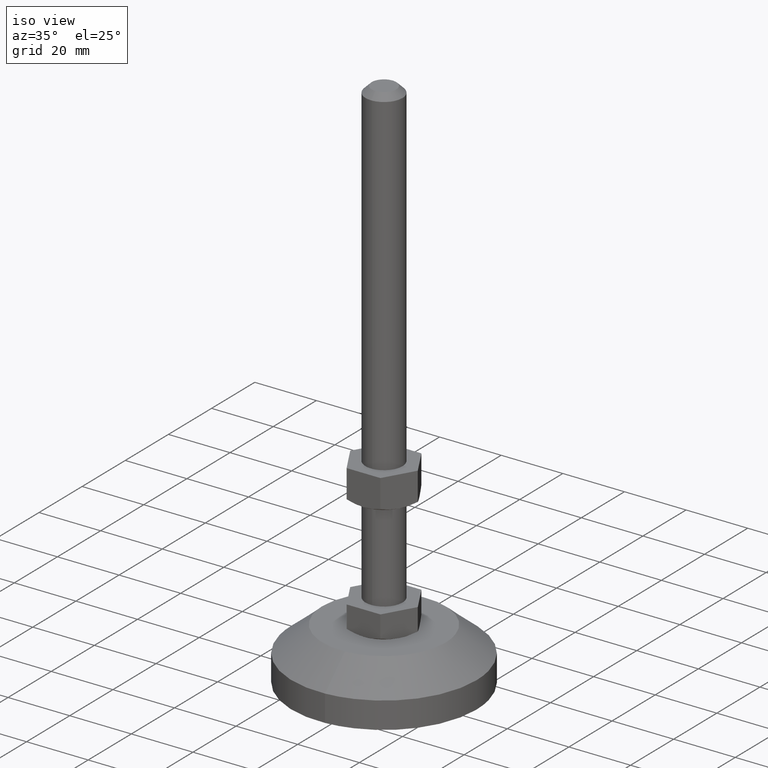
[diagram: clean part render]
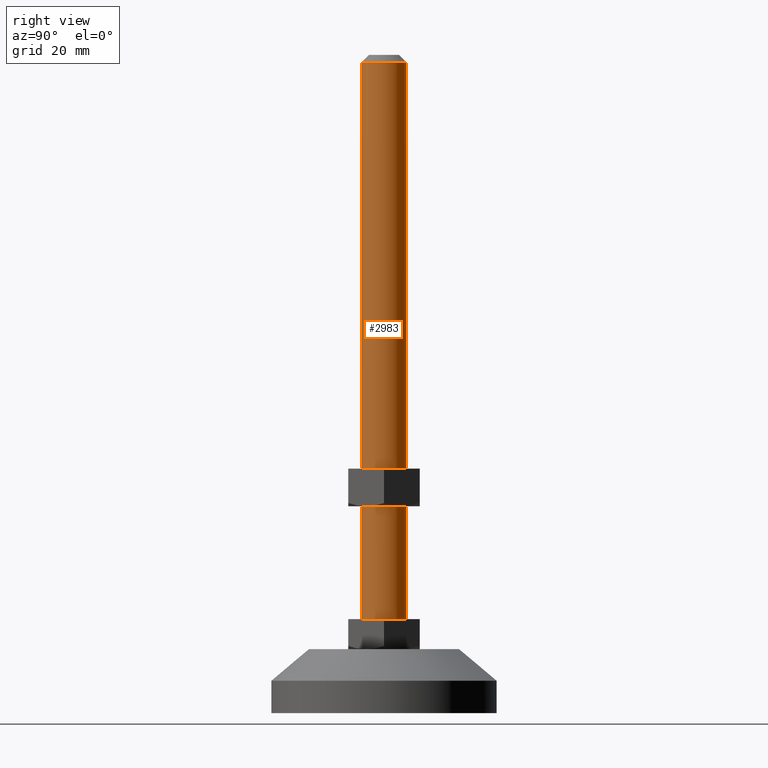
[diagram: tour spotlight — one face highlighted and labeled with its STEP entity id]
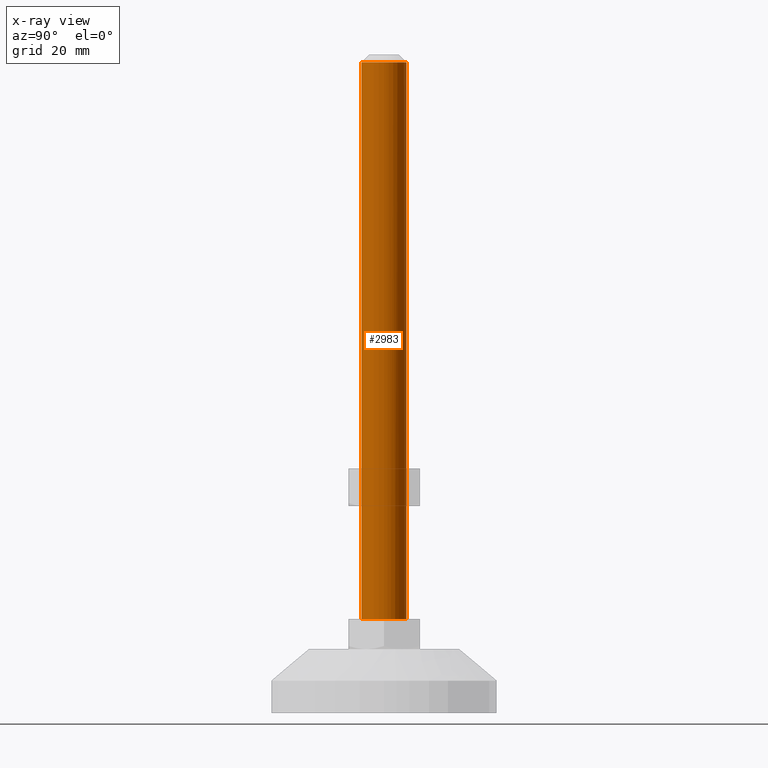
[diagram: x-ray of the same camera — body ghosted, this tour face saturated]
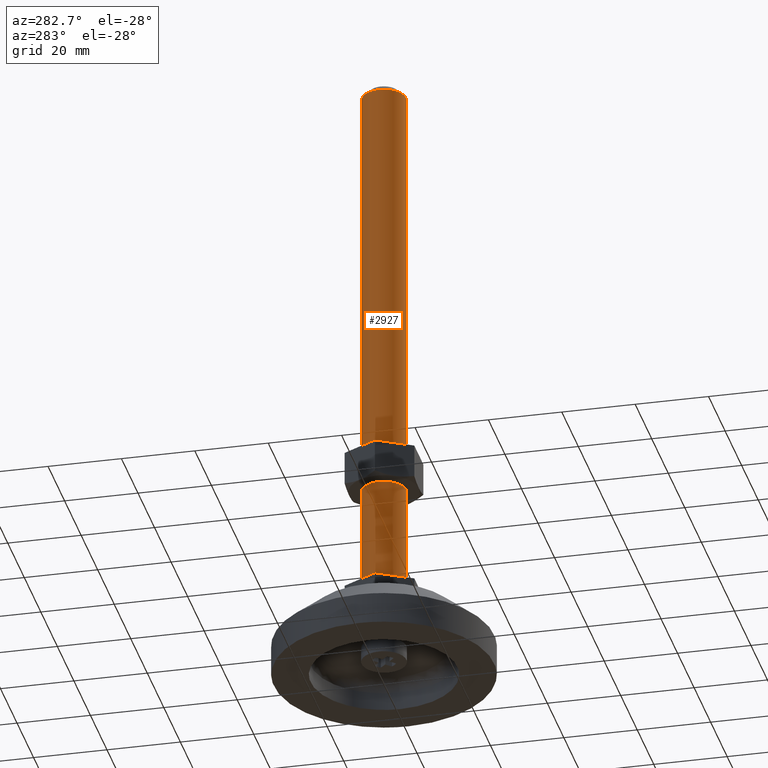
[diagram: tour spotlight — one face highlighted and labeled with its STEP entity id]
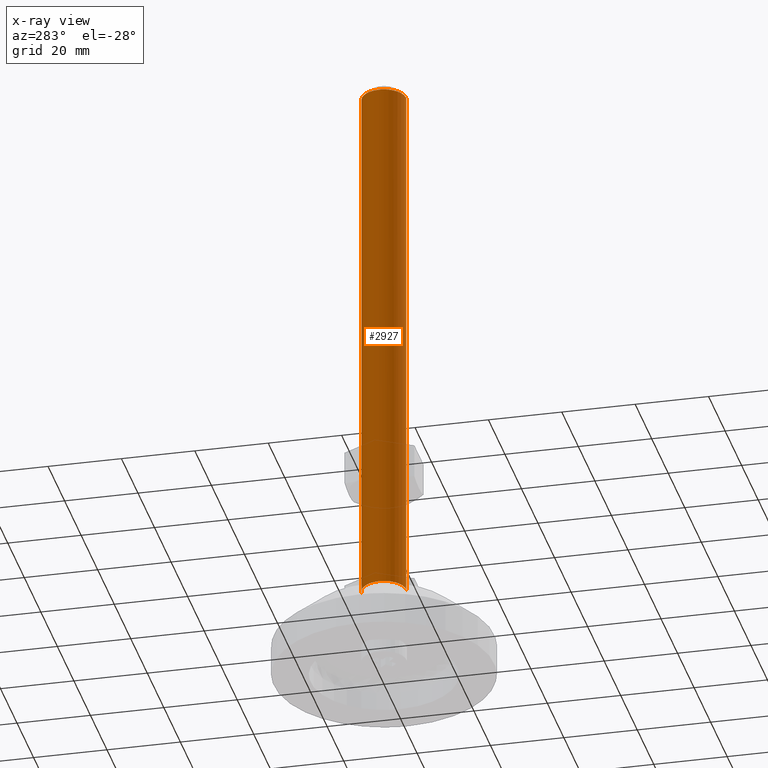
[diagram: x-ray of the same camera — body ghosted, this tour face saturated]
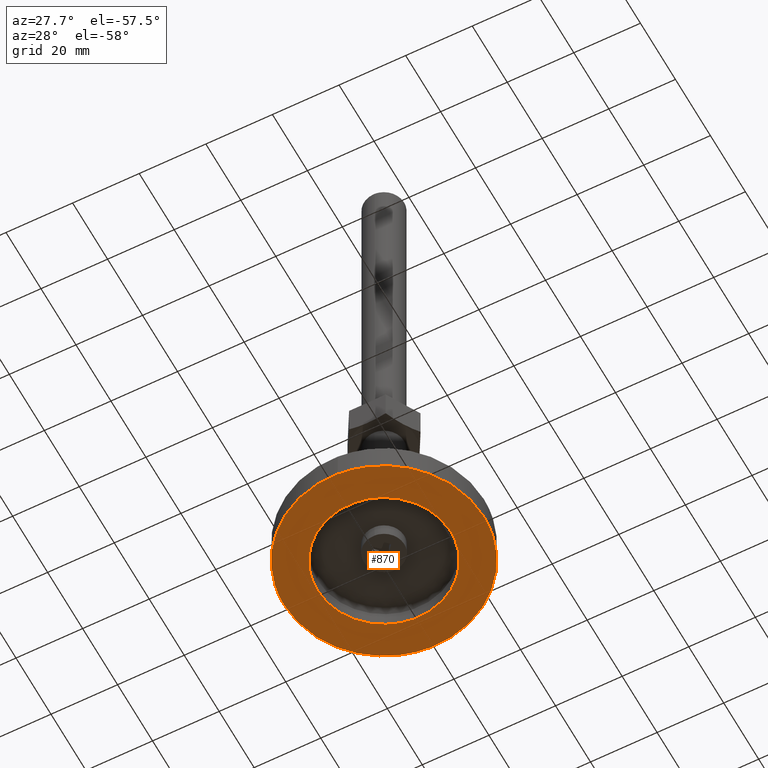
[diagram: tour spotlight — one face highlighted and labeled with its STEP entity id]
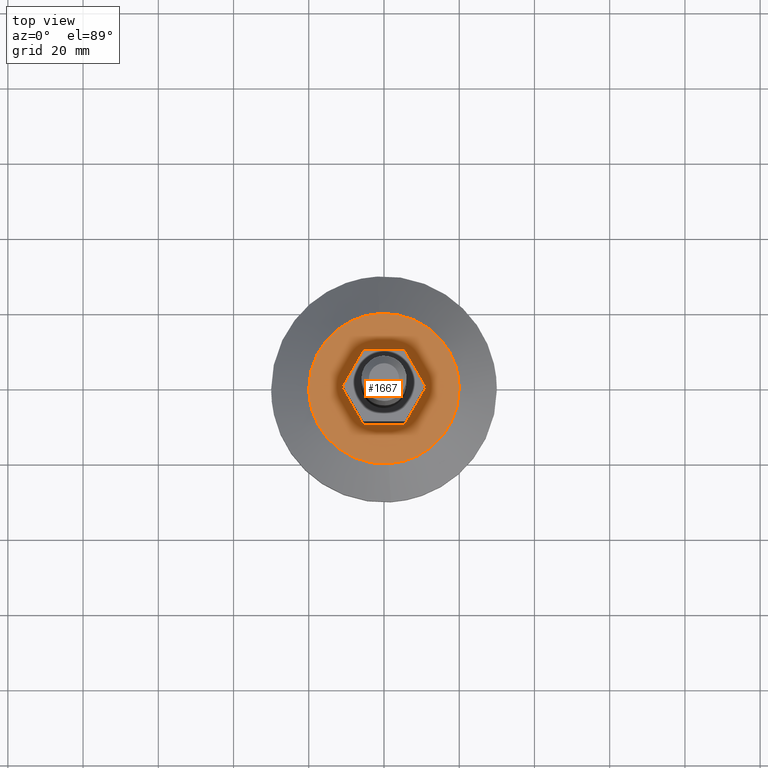
[diagram: tour spotlight — one face highlighted and labeled with its STEP entity id]
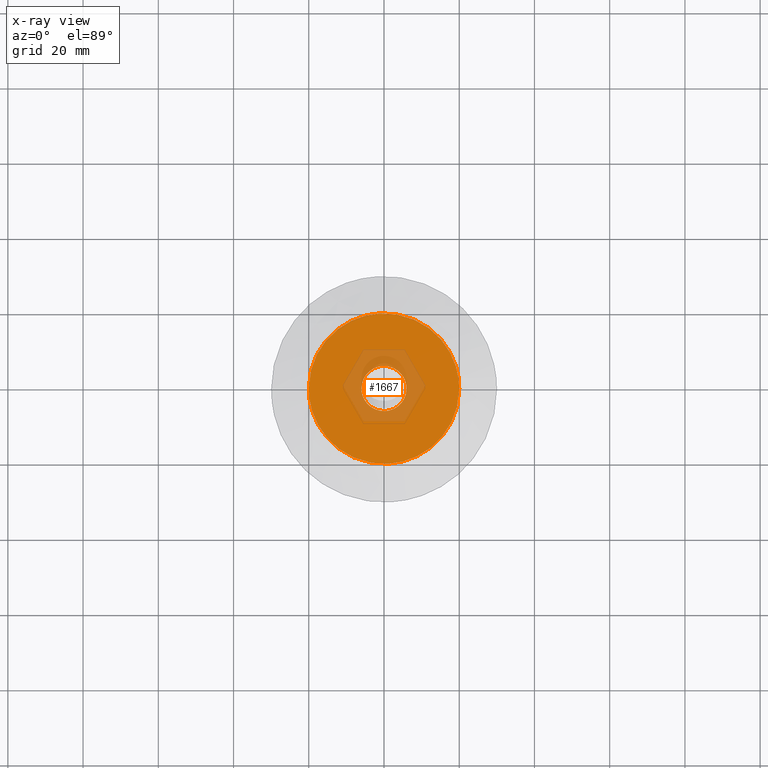
[diagram: x-ray of the same camera — body ghosted, this tour face saturated]
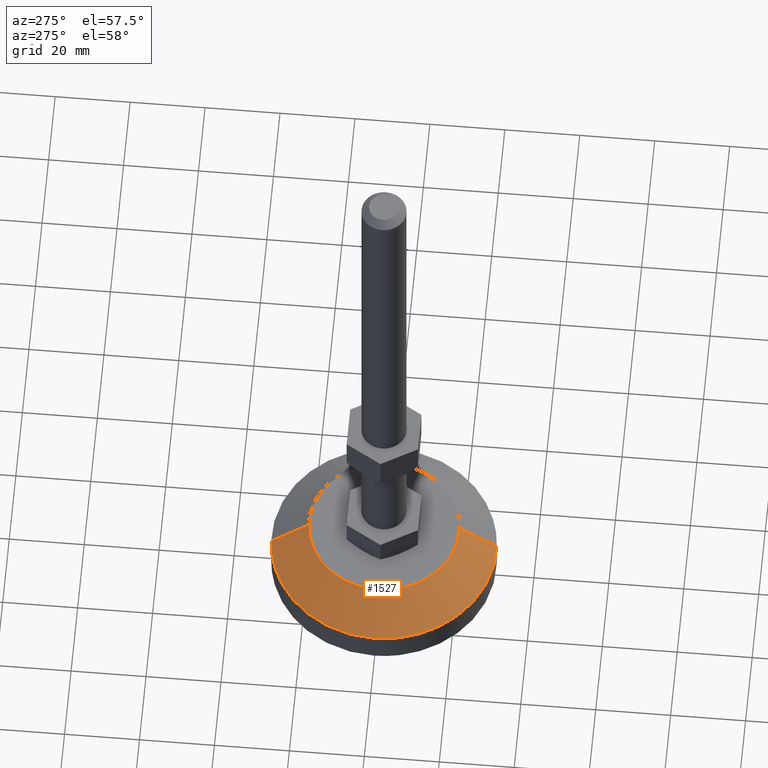
[diagram: tour spotlight — one face highlighted and labeled with its STEP entity id]
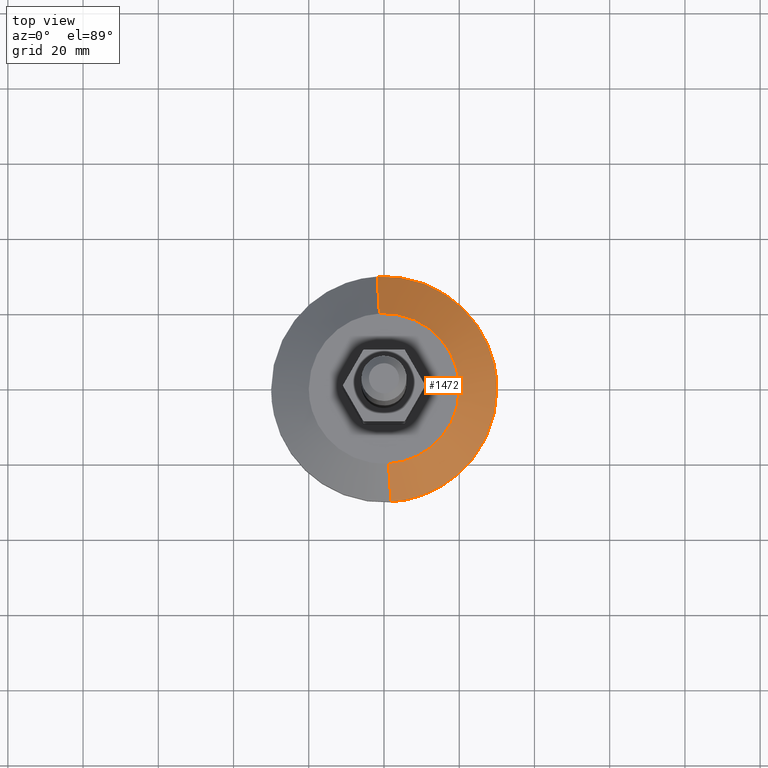
[diagram: tour spotlight — one face highlighted and labeled with its STEP entity id]
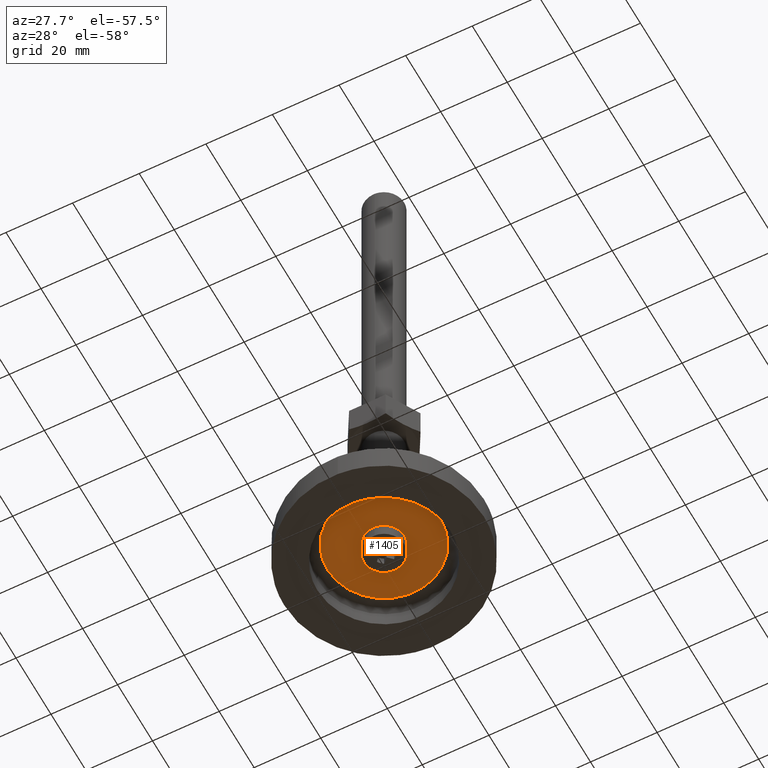
[diagram: tour spotlight — one face highlighted and labeled with its STEP entity id]
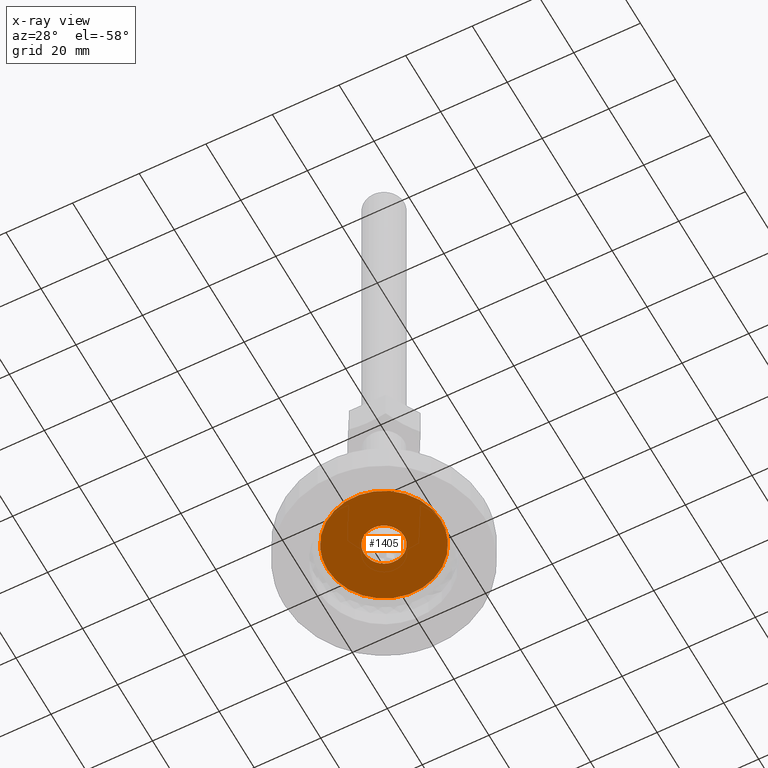
[diagram: x-ray of the same camera — body ghosted, this tour face saturated]
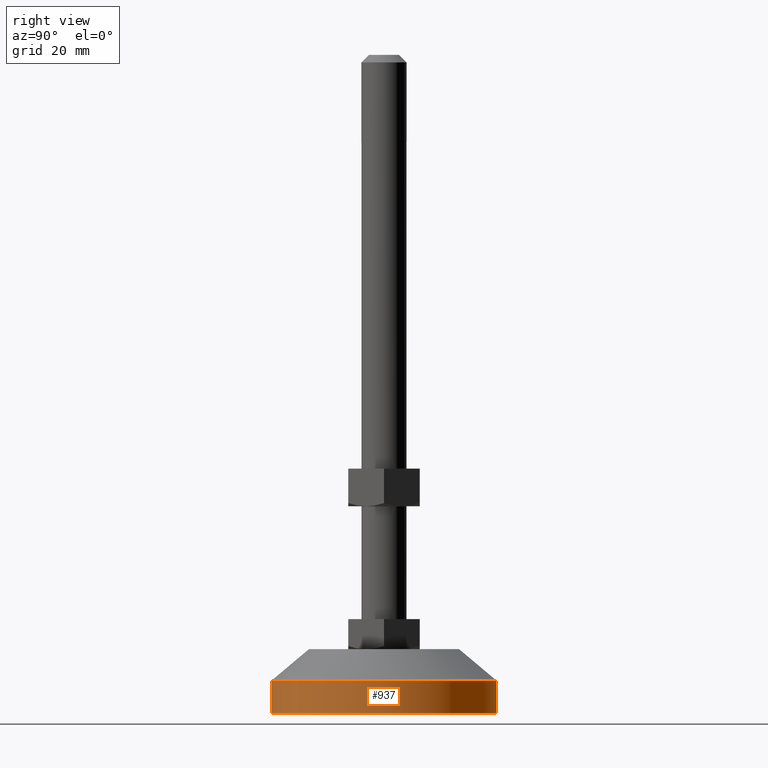
[diagram: tour spotlight — one face highlighted and labeled with its STEP entity id]
A machine part: a face-by-face anatomy tour. The part has 75 B-rep faces; the first image is the clean iso view, then the 8 largest visible faces are spotlighted one at a time (largest first), each with its STEP entity span.

Face 1 — right view, entity #2983. An x-ray twin of the same camera follows (body ghosted, this face saturated) — the face is partly hidden behind the body. In plain terms, the highlighted face is a freeform B-spline surface patch.
Definition (entity closure, byte-faithful):
#2766=CARTESIAN_POINT('',(0.052359215712710,5.999771538730855,172.999999999630400));
#2767=VERTEX_POINT('',#2766);
#2773=CARTESIAN_POINT('',(-0.366291237476671,5.988808790514838,173.0));
#2774=VERTEX_POINT('',#2773);
#2775=CARTESIAN_POINT('',(-0.366291237476671,5.988808790514838,173.0));
#2776=CARTESIAN_POINT('',(-0.226931836081410,5.997333015457616,172.999999999876910));
#2777=CARTESIAN_POINT('',(-0.087253164246172,6.000990685484795,172.999999999753410));
#2778=CARTESIAN_POINT('',(0.052359215712710,5.999771538730855,172.999999999630400));
#2779=B_SPLINE_CURVE_WITH_KNOTS('',3,(#2775,#2776,#2777,#2778),.UNSPECIFIED.,.F.,.U.,(4,4),(0.000000025446757,0.418884339072190),.UNSPECIFIED.);
#2780=EDGE_CURVE('',#2774,#2767,#2779,.T.);
#2816=CARTESIAN_POINT('',(0.366291237476672,-5.988808790514838,173.0));
#2817=VERTEX_POINT('',#2816);
#2825=CARTESIAN_POINT('',(6.0,0.0,173.0));
#2826=VERTEX_POINT('',#2825);
#2827=CARTESIAN_POINT('',(6.0,0.0,173.0));
#2828=CARTESIAN_POINT('',(6.000000000000001,-5.644236401181561,172.999999999999940));
#2829=CARTESIAN_POINT('',(0.366291237476672,-5.988808790514838,173.0));
#2837=(BOUNDED_CURVE()B_SPLINE_CURVE(2,(#2827,#2828,#2829),.UNSPECIFIED.,.F.,.U.)B_SPLINE_CURVE_WITH_KNOTS((3,3),(0.0,0.239332962234260),.UNSPECIFIED.)CURVE()GEOMETRIC_REPRESENTATION_ITEM()RATIONAL_B_SPLINE_CURVE((1.0,0.719603993292196,0.976072041656682))REPRESENTATION_ITEM(''));
#2838=EDGE_CURVE('',#2826,#2817,#2837,.T.);
#2840=CARTESIAN_POINT('',(0.052359215712710,5.999771538730855,172.999999999630400));
#2841=CARTESIAN_POINT('',(6.000000000001613,5.947867261058829,172.999999999815200));
#2842=CARTESIAN_POINT('',(6.0,0.0,173.0));
#2850=(BOUNDED_CURVE()B_SPLINE_CURVE(2,(#2840,#2841,#2842),.UNSPECIFIED.,.F.,.U.)B_SPLINE_CURVE_WITH_KNOTS((3,3),(0.751539894414819,1.0),.UNSPECIFIED.)CURVE()GEOMETRIC_REPRESENTATION_ITEM()RATIONAL_B_SPLINE_CURVE((0.996414027915652,0.708910879713705,1.0))REPRESENTATION_ITEM(''));
#2851=EDGE_CURVE('',#2767,#2826,#2850,.T.);
#2878=CARTESIAN_POINT('',(0.366291237476672,-5.988808790514838,25.0));
#2879=VERTEX_POINT('',#2878);
#2897=CARTESIAN_POINT('',(0.366291237476672,-5.988808790514838,173.0));
#2898=CARTESIAN_POINT('',(0.366291237476672,-5.988808790514838,25.0));
#2899=QUASI_UNIFORM_CURVE('',1,(#2897,#2898),.UNSPECIFIED.,.F.,.U.);
#2900=EDGE_CURVE('',#2817,#2879,#2899,.T.);
#2905=CARTESIAN_POINT('',(-0.366291237476671,5.988808790514838,25.0));
#2906=VERTEX_POINT('',#2905);
#2907=CARTESIAN_POINT('',(-0.366291237476671,5.988808790514838,173.0));
#2908=CARTESIAN_POINT('',(-0.366291237476671,5.988808790514838,25.0));
#2909=QUASI_UNIFORM_CURVE('',1,(#2907,#2908),.UNSPECIFIED.,.F.,.U.);
#2910=EDGE_CURVE('',#2774,#2906,#2909,.T.);
#2928=CARTESIAN_POINT('',(-0.366291237209142,5.988808790531200,176.700000000000100));
#2929=CARTESIAN_POINT('',(5.622517553322059,6.355100027740342,176.700000000000050));
#2930=CARTESIAN_POINT('',(5.988808790531200,0.366291237209142,176.700000000000100));
#2931=CARTESIAN_POINT('',(6.355100027740342,-5.622517553322059,176.700000000000050));
#2932=CARTESIAN_POINT('',(0.366291237209142,-5.988808790531200,176.700000000000100));
#2933=CARTESIAN_POINT('',(-0.366291237209142,5.988808790531200,21.207500000000010));
#2934=CARTESIAN_POINT('',(5.622517553322059,6.355100027740342,21.207500000000017));
#2935=CARTESIAN_POINT('',(5.988808790531200,0.366291237209142,21.207500000000010));
#2936=CARTESIAN_POINT('',(6.355100027740342,-5.622517553322059,21.207500000000017));
#2937=CARTESIAN_POINT('',(0.366291237209142,-5.988808790531200,21.207500000000010));
#2945=(BOUNDED_SURFACE()B_SPLINE_SURFACE(2,1,((#2928,#2933),(#2929,#2934),(#2930,#2935),(#2931,#2936),(#2932,#2937)),.UNSPECIFIED.,.F.,.F.,.U.)B_SPLINE_SURFACE_WITH_KNOTS((3,2,3),(2,2),(0.0,9.941125496954278,19.882250993908560),(0.0,155.492500000000010),.UNSPECIFIED.)GEOMETRIC_REPRESENTATION_ITEM()RATIONAL_B_SPLINE_SURFACE(((1.0,1.0),(0.707106781186548,0.707106781186548),(1.0,1.0),(0.707106781186548,0.707106781186548),(1.0,1.0)))REPRESENTATION_ITEM('')SURFACE());
#2946=CARTESIAN_POINT('',(6.0,0.0,25.0));
#2947=VERTEX_POINT('',#2946);
#2948=CARTESIAN_POINT('',(6.0,0.0,25.0));
#2949=CARTESIAN_POINT('',(6.000000000000001,-5.644236401181561,24.999999999999993));
#2950=CARTESIAN_POINT('',(0.366291237476672,-5.988808790514838,24.999999999999993));
#2958=(BOUNDED_CURVE()B_SPLINE_CURVE(2,(#2948,#2949,#2950),.UNSPECIFIED.,.F.,.U.)B_SPLINE_CURVE_WITH_KNOTS((3,3),(0.0,0.239332962234260),.UNSPECIFIED.)CURVE()GEOMETRIC_REPRESENTATION_ITEM()RATIONAL_B_SPLINE_CURVE((1.0,0.719603993292196,0.976072041656682))REPRESENTATION_ITEM(''));
#2959=EDGE_CURVE('',#2947,#2879,#2958,.T.);
#2960=ORIENTED_EDGE('',*,*,#2959,.F.);
#2961=CARTESIAN_POINT('',(-0.366291237476671,5.988808790514840,24.999999999999993));
#2962=CARTESIAN_POINT('',(-0.183316579925673,6.000000000000001,25.000000000000004));
#2963=CARTESIAN_POINT('',(0.0,6.0,25.0));
#2964=CARTESIAN_POINT('',(6.0,6.0,25.0));
#2965=CARTESIAN_POINT('',(6.0,0.0,25.0));
#2973=(BOUNDED_CURVE()B_SPLINE_CURVE(2,(#2961,#2962,#2963,#2964,#2965),.UNSPECIFIED.,.F.,.U.)B_SPLINE_CURVE_WITH_KNOTS((3,2,3),(0.739332962234260,0.750000000000000,1.0),.UNSPECIFIED.)CURVE()GEOMETRIC_REPRESENTATION_ITEM()RATIONAL_B_SPLINE_CURVE((0.976072041656682,0.987502787894351,1.0,0.707106781186548,1.0))REPRESENTATION_ITEM(''));
#2974=EDGE_CURVE('',#2906,#2947,#2973,.T.);
#2975=ORIENTED_EDGE('',*,*,#2974,.F.);
#2976=ORIENTED_EDGE('',*,*,#2910,.F.);
#2977=ORIENTED_EDGE('',*,*,#2780,.T.);
#2978=ORIENTED_EDGE('',*,*,#2851,.T.);
#2979=ORIENTED_EDGE('',*,*,#2838,.T.);
#2980=ORIENTED_EDGE('',*,*,#2900,.T.);
#2981=EDGE_LOOP('',(#2960,#2975,#2976,#2977,#2978,#2979,#2980));
#2982=FACE_OUTER_BOUND('',#2981,.T.);
#2983=ADVANCED_FACE('',(#2982),#2945,.T.);

Face 2 — auxiliary view, entity #2927. An x-ray twin of the same camera follows (body ghosted, this face saturated) — the face is partly hidden behind the body. In plain terms, the highlighted face is a freeform B-spline surface patch.
Definition (entity closure, byte-faithful):
#2742=CARTESIAN_POINT('',(-0.052359215712709,-5.999771538730856,172.999999999630400));
#2743=VERTEX_POINT('',#2742);
#2744=CARTESIAN_POINT('',(-6.0,0.0,173.0));
#2745=VERTEX_POINT('',#2744);
#2746=CARTESIAN_POINT('',(-0.052359215712709,-5.999771538730856,172.999999999630380));
#2747=CARTESIAN_POINT('',(-6.000000000001613,-5.947867261058832,172.999999999815230));
#2748=CARTESIAN_POINT('',(-6.0,0.0,173.0));
#2756=(BOUNDED_CURVE()B_SPLINE_CURVE(2,(#2746,#2747,#2748),.UNSPECIFIED.,.F.,.U.)B_SPLINE_CURVE_WITH_KNOTS((3,3),(0.251539894414819,0.500000000000000),.UNSPECIFIED.)CURVE()GEOMETRIC_REPRESENTATION_ITEM()RATIONAL_B_SPLINE_CURVE((0.996414027915652,0.708910879713705,1.0))REPRESENTATION_ITEM(''));
#2757=EDGE_CURVE('',#2743,#2745,#2756,.T.);
#2773=CARTESIAN_POINT('',(-0.366291237476671,5.988808790514838,173.0));
#2774=VERTEX_POINT('',#2773);
#2782=CARTESIAN_POINT('',(-6.0,0.0,173.0));
#2783=CARTESIAN_POINT('',(-6.0,5.644236401181561,172.999999999999940));
#2784=CARTESIAN_POINT('',(-0.366291237476671,5.988808790514840,173.0));
#2792=(BOUNDED_CURVE()B_SPLINE_CURVE(2,(#2782,#2783,#2784),.UNSPECIFIED.,.F.,.U.)B_SPLINE_CURVE_WITH_KNOTS((3,3),(0.500000000000000,0.739332962234260),.UNSPECIFIED.)CURVE()GEOMETRIC_REPRESENTATION_ITEM()RATIONAL_B_SPLINE_CURVE((1.0,0.719603993292196,0.976072041656682))REPRESENTATION_ITEM(''));
#2793=EDGE_CURVE('',#2745,#2774,#2792,.T.);
#2816=CARTESIAN_POINT('',(0.366291237476672,-5.988808790514838,173.0));
#2817=VERTEX_POINT('',#2816);
#2818=CARTESIAN_POINT('',(0.366291237476672,-5.988808790514838,173.0));
#2819=CARTESIAN_POINT('',(0.226934004668718,-5.997333014471033,172.999999999876790));
#2820=CARTESIAN_POINT('',(0.087255311453824,-6.000990573427542,172.999999999753610));
#2821=CARTESIAN_POINT('',(-0.052359215712709,-5.999771538730856,172.999999999630400));
#2822=B_SPLINE_CURVE_WITH_KNOTS('',3,(#2818,#2819,#2820,#2821),.UNSPECIFIED.,.F.,.U.,(4,4),(0.000000025446758,0.418884339072189),.UNSPECIFIED.);
#2823=EDGE_CURVE('',#2817,#2743,#2822,.T.);
#2860=CARTESIAN_POINT('',(0.366291237209142,-5.988808790531200,176.700000000000100));
#2861=CARTESIAN_POINT('',(-5.622517553322059,-6.355100027740342,176.700000000000050));
#2862=CARTESIAN_POINT('',(-5.988808790531200,-0.366291237209142,176.700000000000100));
#2863=CARTESIAN_POINT('',(-6.355100027740342,5.622517553322059,176.700000000000050));
#2864=CARTESIAN_POINT('',(-0.366291237209142,5.988808790531200,176.700000000000100));
#2865=CARTESIAN_POINT('',(0.366291237209142,-5.988808790531200,21.207500000000010));
#2866=CARTESIAN_POINT('',(-5.622517553322059,-6.355100027740342,21.207500000000017));
#2867=CARTESIAN_POINT('',(-5.988808790531200,-0.366291237209142,21.207500000000010));
#2868=CARTESIAN_POINT('',(-6.355100027740342,5.622517553322059,21.207500000000017));
#2869=CARTESIAN_POINT('',(-0.366291237209142,5.988808790531200,21.207500000000010));
#2877=(BOUNDED_SURFACE()B_SPLINE_SURFACE(2,1,((#2860,#2865),(#2861,#2866),(#2862,#2867),(#2863,#2868),(#2864,#2869)),.UNSPECIFIED.,.F.,.F.,.U.)B_SPLINE_SURFACE_WITH_KNOTS((3,2,3),(2,2),(0.0,9.941125496954278,19.882250993908560),(0.0,155.492500000000010),.UNSPECIFIED.)GEOMETRIC_REPRESENTATION_ITEM()RATIONAL_B_SPLINE_SURFACE(((1.0,1.0),(0.707106781186548,0.707106781186548),(1.0,1.0),(0.707106781186548,0.707106781186548),(1.0,1.0)))REPRESENTATION_ITEM('')SURFACE());
#2878=CARTESIAN_POINT('',(0.366291237476672,-5.988808790514838,25.0));
#2879=VERTEX_POINT('',#2878);
#2880=CARTESIAN_POINT('',(-6.0,0.0,25.0));
#2881=VERTEX_POINT('',#2880);
#2882=CARTESIAN_POINT('',(0.366291237476672,-5.988808790514838,24.999999999999993));
#2883=CARTESIAN_POINT('',(0.183316579925674,-5.999999999999999,25.000000000000004));
#2884=CARTESIAN_POINT('',(0.0,-6.0,25.0));
#2885=CARTESIAN_POINT('',(-6.0,-6.0,25.0));
#2886=CARTESIAN_POINT('',(-6.0,0.0,25.0));
#2894=(BOUNDED_CURVE()B_SPLINE_CURVE(2,(#2882,#2883,#2884,#2885,#2886),.UNSPECIFIED.,.F.,.U.)B_SPLINE_CURVE_WITH_KNOTS((3,2,3),(0.239332962234260,0.250000000000000,0.500000000000000),.UNSPECIFIED.)CURVE()GEOMETRIC_REPRESENTATION_ITEM()RATIONAL_B_SPLINE_CURVE((0.976072041656682,0.987502787894351,1.0,0.707106781186548,1.0))REPRESENTATION_ITEM(''));
#2895=EDGE_CURVE('',#2879,#2881,#2894,.T.);
#2896=ORIENTED_EDGE('',*,*,#2895,.F.);
#2897=CARTESIAN_POINT('',(0.366291237476672,-5.988808790514838,173.0));
#2898=CARTESIAN_POINT('',(0.366291237476672,-5.988808790514838,25.0));
#2899=QUASI_UNIFORM_CURVE('',1,(#2897,#2898),.UNSPECIFIED.,.F.,.U.);
#2900=EDGE_CURVE('',#2817,#2879,#2899,.T.);
#2901=ORIENTED_EDGE('',*,*,#2900,.F.);
#2902=ORIENTED_EDGE('',*,*,#2823,.T.);
#2903=ORIENTED_EDGE('',*,*,#2757,.T.);
#2904=ORIENTED_EDGE('',*,*,#2793,.T.);
#2905=CARTESIAN_POINT('',(-0.366291237476671,5.988808790514838,25.0));
#2906=VERTEX_POINT('',#2905);
#2907=CARTESIAN_POINT('',(-0.366291237476671,5.988808790514838,173.0));
#2908=CARTESIAN_POINT('',(-0.366291237476671,5.988808790514838,25.0));
#2909=QUASI_UNIFORM_CURVE('',1,(#2907,#2908),.UNSPECIFIED.,.F.,.U.);
#2910=EDGE_CURVE('',#2774,#2906,#2909,.T.);
#2911=ORIENTED_EDGE('',*,*,#2910,.T.);
#2912=CARTESIAN_POINT('',(-6.0,0.0,25.0));
#2913=CARTESIAN_POINT('',(-6.0,5.644236401181561,24.999999999999993));
#2914=CARTESIAN_POINT('',(-0.366291237476671,5.988808790514840,24.999999999999993));
#2922=(BOUNDED_CURVE()B_SPLINE_CURVE(2,(#2912,#2913,#2914),.UNSPECIFIED.,.F.,.U.)B_SPLINE_CURVE_WITH_KNOTS((3,3),(0.500000000000000,0.739332962234260),.UNSPECIFIED.)CURVE()GEOMETRIC_REPRESENTATION_ITEM()RATIONAL_B_SPLINE_CURVE((1.0,0.719603993292196,0.976072041656682))REPRESENTATION_ITEM(''));
#2923=EDGE_CURVE('',#2881,#2906,#2922,.T.);
#2924=ORIENTED_EDGE('',*,*,#2923,.F.);
#2925=EDGE_LOOP('',(#2896,#2901,#2902,#2903,#2904,#2911,#2924));
#2926=FACE_OUTER_BOUND('',#2925,.T.);
#2927=ADVANCED_FACE('',(#2926),#2877,.T.);

Face 3 — auxiliary view, entity #870. In plain terms, the highlighted face is a freeform B-spline surface patch.
Definition (entity closure, byte-faithful):
#733=CARTESIAN_POINT('',(32.996999883708362,-32.996261619275728,0.0));
#734=CARTESIAN_POINT('',(-32.997001493033771,-32.996261619275728,0.0));
#735=CARTESIAN_POINT('',(32.996999883708362,32.996260546392129,0.0));
#736=CARTESIAN_POINT('',(-32.997001493033771,32.996260546392129,0.0));
#737=B_SPLINE_SURFACE_WITH_KNOTS('',1,1,((#733,#735),(#734,#736)),.UNSPECIFIED.,.F.,.F.,.U.,(2,2),(2,2),(0.0,65.994001376742119),(0.0,65.992522165667850),.UNSPECIFIED.);
#738=CARTESIAN_POINT('',(-30.0,0.0,0.0));
#739=VERTEX_POINT('',#738);
#740=CARTESIAN_POINT('',(-1.831428777009582,29.944045629039291,-2.081668E-016));
#741=VERTEX_POINT('',#740);
#742=CARTESIAN_POINT('',(-30.0,0.0,0.0));
#743=CARTESIAN_POINT('',(-29.999999999999609,28.221207887474748,-1.040834E-016));
#744=CARTESIAN_POINT('',(-1.831428777009582,29.944045629039284,-2.081668E-016));
#752=(BOUNDED_CURVE()B_SPLINE_CURVE(2,(#742,#743,#744),.UNSPECIFIED.,.F.,.U.)B_SPLINE_CURVE_WITH_KNOTS((3,3),(0.0,0.239333120181282),.UNSPECIFIED.)CURVE()GEOMETRIC_REPRESENTATION_ITEM()RATIONAL_B_SPLINE_CURVE((1.0,0.719603808245750,0.976072380167450))REPRESENTATION_ITEM(''));
#753=EDGE_CURVE('',#739,#741,#752,.T.);
#754=ORIENTED_EDGE('',*,*,#753,.T.);
#755=CARTESIAN_POINT('',(30.0,0.0,0.0));
#756=VERTEX_POINT('',#755);
#757=CARTESIAN_POINT('',(-1.831428777009582,29.944045629039284,-2.081668E-016));
#758=CARTESIAN_POINT('',(-0.916569156013670,29.999999999987637,-2.051754E-016));
#759=CARTESIAN_POINT('',(7.493760E-013,29.999999999987828,-2.019954E-016));
#760=CARTESIAN_POINT('',(30.000000000000359,29.999999999994095,-9.791198E-017));
#761=CARTESIAN_POINT('',(30.0,0.0,0.0));
#769=(BOUNDED_CURVE()B_SPLINE_CURVE(2,(#757,#758,#759,#760,#761),.UNSPECIFIED.,.F.,.U.)B_SPLINE_CURVE_WITH_KNOTS((3,2,3),(0.239333120181282,0.250000000000000,0.500000000000000),.UNSPECIFIED.)CURVE()GEOMETRIC_REPRESENTATION_ITEM()RATIONAL_B_SPLINE_CURVE((0.976072380167450,0.987502972940798,1.0,0.707106781186547,1.0))REPRESENTATION_ITEM(''));
#770=EDGE_CURVE('',#741,#756,#769,.T.);
#771=ORIENTED_EDGE('',*,*,#770,.T.);
#772=CARTESIAN_POINT('',(1.831428777009578,-29.944045629039291,2.914335E-016));
#773=VERTEX_POINT('',#772);
#774=CARTESIAN_POINT('',(30.0,0.0,0.0));
#775=CARTESIAN_POINT('',(29.999999999999613,-28.221207887474765,1.457168E-016));
#776=CARTESIAN_POINT('',(1.831428777009578,-29.944045629039291,2.914335E-016));
#784=(BOUNDED_CURVE()B_SPLINE_CURVE(2,(#774,#775,#776),.UNSPECIFIED.,.F.,.U.)B_SPLINE_CURVE_WITH_KNOTS((3,3),(0.500000000000000,0.739333120181282),.UNSPECIFIED.)CURVE()GEOMETRIC_REPRESENTATION_ITEM()RATIONAL_B_SPLINE_CURVE((1.0,0.719603808245750,0.976072380167450))REPRESENTATION_ITEM(''));
#785=EDGE_CURVE('',#756,#773,#784,.T.);
#786=ORIENTED_EDGE('',*,*,#785,.T.);
#787=CARTESIAN_POINT('',(1.831428777009578,-29.944045629039291,2.914335E-016));
#788=CARTESIAN_POINT('',(0.916569156013669,-29.999999999987633,2.872455E-016));
#789=CARTESIAN_POINT('',(-7.480832E-013,-29.999999999987828,2.827935E-016));
#790=CARTESIAN_POINT('',(-30.000000000000359,-29.999999999994095,1.370768E-016));
#791=CARTESIAN_POINT('',(-30.0,0.0,0.0));
#799=(BOUNDED_CURVE()B_SPLINE_CURVE(2,(#787,#788,#789,#790,#791),.UNSPECIFIED.,.F.,.U.)B_SPLINE_CURVE_WITH_KNOTS((3,2,3),(0.739333120181282,0.750000000000000,1.0),.UNSPECIFIED.)CURVE()GEOMETRIC_REPRESENTATION_ITEM()RATIONAL_B_SPLINE_CURVE((0.976072380167450,0.987502972940798,1.0,0.707106781186547,1.0))REPRESENTATION_ITEM(''));
#800=EDGE_CURVE('',#773,#739,#799,.T.);
#801=ORIENTED_EDGE('',*,*,#800,.T.);
#802=EDGE_LOOP('',(#754,#771,#786,#801));
#803=FACE_OUTER_BOUND('',#802,.T.);
#804=CARTESIAN_POINT('',(20.0,0.0,0.0));
#805=VERTEX_POINT('',#804);
#806=CARTESIAN_POINT('',(1.569181914707607,-19.938346674650699,-5.551115E-017));
#807=VERTEX_POINT('',#806);
#808=CARTESIAN_POINT('',(20.0,0.0,0.0));
#809=CARTESIAN_POINT('',(20.0,-18.487809833023967,0.0));
#810=CARTESIAN_POINT('',(1.569181914707610,-19.938346674650706,0.0));
#818=(BOUNDED_CURVE()B_SPLINE_CURVE(2,(#808,#809,#810),.UNSPECIFIED.,.F.,.U.)B_SPLINE_CURVE_WITH_KNOTS((3,3),(0.500000000000000,0.736331300631471),.UNSPECIFIED.)CURVE()GEOMETRIC_REPRESENTATION_ITEM()RATIONAL_B_SPLINE_CURVE((1.0,0.723120658606715,0.969723356169111))REPRESENTATION_ITEM(''));
#819=EDGE_CURVE('',#805,#807,#818,.T.);
#820=ORIENTED_EDGE('',*,*,#819,.F.);
#821=CARTESIAN_POINT('',(-1.569181914707606,19.938346674650699,-5.551115E-017));
#822=VERTEX_POINT('',#821);
#823=CARTESIAN_POINT('',(-1.569181914707607,19.938346674650703,0.0));
#824=CARTESIAN_POINT('',(-0.785802140229096,20.000000000000007,0.0));
#825=CARTESIAN_POINT('',(0.0,20.0,0.0));
#826=CARTESIAN_POINT('',(19.999999999999996,19.999999999999996,0.0));
#827=CARTESIAN_POINT('',(20.0,0.0,0.0));
#835=(BOUNDED_CURVE()B_SPLINE_CURVE(2,(#823,#824,#825,#826,#827),.UNSPECIFIED.,.F.,.U.)B_SPLINE_CURVE_WITH_KNOTS((3,2,3),(0.236331300631471,0.250000000000000,0.500000000000000),.UNSPECIFIED.)CURVE()GEOMETRIC_REPRESENTATION_ITEM()RATIONAL_B_SPLINE_CURVE((0.969723356169111,0.983986122579833,1.0,0.707106781186548,1.0))REPRESENTATION_ITEM(''));
#836=EDGE_CURVE('',#822,#805,#835,.T.);
#837=ORIENTED_EDGE('',*,*,#836,.F.);
#838=CARTESIAN_POINT('',(-20.0,0.0,0.0));
#839=VERTEX_POINT('',#838);
#840=CARTESIAN_POINT('',(-20.0,0.0,0.0));
#841=CARTESIAN_POINT('',(-20.000000000000004,18.487809833023970,0.0));
#842=CARTESIAN_POINT('',(-1.569181914707607,19.938346674650703,0.0));
#850=(BOUNDED_CURVE()B_SPLINE_CURVE(2,(#840,#841,#842),.UNSPECIFIED.,.F.,.U.)B_SPLINE_CURVE_WITH_KNOTS((3,3),(0.0,0.236331300631471),.UNSPECIFIED.)CURVE()GEOMETRIC_REPRESENTATION_ITEM()RATIONAL_B_SPLINE_CURVE((1.0,0.723120658606715,0.969723356169111))REPRESENTATION_ITEM(''));
#851=EDGE_CURVE('',#839,#822,#850,.T.);
#852=ORIENTED_EDGE('',*,*,#851,.F.);
#853=CARTESIAN_POINT('',(1.569181914707610,-19.938346674650706,0.0));
#854=CARTESIAN_POINT('',(0.785802140229098,-19.999999999999996,0.0));
#855=CARTESIAN_POINT('',(0.0,-20.0,0.0));
#856=CARTESIAN_POINT('',(-19.999999999999996,-19.999999999999996,0.0));
#857=CARTESIAN_POINT('',(-20.0,0.0,0.0));
#865=(BOUNDED_CURVE()B_SPLINE_CURVE(2,(#853,#854,#855,#856,#857),.UNSPECIFIED.,.F.,.U.)B_SPLINE_CURVE_WITH_KNOTS((3,2,3),(0.736331300631471,0.750000000000000,1.0),.UNSPECIFIED.)CURVE()GEOMETRIC_REPRESENTATION_ITEM()RATIONAL_B_SPLINE_CURVE((0.969723356169111,0.983986122579833,1.0,0.707106781186548,1.0))REPRESENTATION_ITEM(''));
#866=EDGE_CURVE('',#807,#839,#865,.T.);
#867=ORIENTED_EDGE('',*,*,#866,.F.);
#868=EDGE_LOOP('',(#820,#837,#852,#867));
#869=FACE_BOUND('',#868,.T.);
#870=ADVANCED_FACE('',(#803,#869),#737,.T.);

Face 4 — top view, entity #1667. An x-ray twin of the same camera follows (body ghosted, this face saturated) — the face is partly hidden behind the body. In plain terms, the highlighted face is a freeform B-spline surface patch.
Definition (entity closure, byte-faithful):
#1424=CARTESIAN_POINT('',(-1.220970790866057,19.962695968450429,16.999999999980378));
#1425=VERTEX_POINT('',#1424);
#1431=CARTESIAN_POINT('',(20.0,0.0,17.0));
#1432=VERTEX_POINT('',#1431);
#1433=CARTESIAN_POINT('',(-1.220970790866056,19.962695968450426,16.999999999980385));
#1434=CARTESIAN_POINT('',(-0.611055266057166,20.000000000022990,16.999999999980659));
#1435=CARTESIAN_POINT('',(-1.386496E-012,20.000000000022641,16.999999999980961));
#1436=CARTESIAN_POINT('',(19.999999999999332,20.000000000010971,16.999999999990766));
#1437=CARTESIAN_POINT('',(20.0,0.0,17.0));
#1445=(BOUNDED_CURVE()B_SPLINE_CURVE(2,(#1433,#1434,#1435,#1436,#1437),.UNSPECIFIED.,.F.,.U.)B_SPLINE_CURVE_WITH_KNOTS((3,2,3),(0.239332962240521,0.250000000000000,0.500000000000000),.UNSPECIFIED.)CURVE()GEOMETRIC_REPRESENTATION_ITEM()RATIONAL_B_SPLINE_CURVE((0.976072041670099,0.987502787901686,1.0,0.707106781186548,1.0))REPRESENTATION_ITEM(''));
#1446=EDGE_CURVE('',#1425,#1432,#1445,.T.);
#1448=CARTESIAN_POINT('',(1.220970790866059,-19.962695968450429,16.999999999980389));
#1449=VERTEX_POINT('',#1448);
#1450=CARTESIAN_POINT('',(20.0,0.0,17.0));
#1451=CARTESIAN_POINT('',(20.000000000000714,-18.814121337967403,16.999999999990202));
#1452=CARTESIAN_POINT('',(1.220970790866058,-19.962695968450426,16.999999999980385));
#1460=(BOUNDED_CURVE()B_SPLINE_CURVE(2,(#1450,#1451,#1452),.UNSPECIFIED.,.F.,.U.)B_SPLINE_CURVE_WITH_KNOTS((3,3),(0.500000000000000,0.739332962240521),.UNSPECIFIED.)CURVE()GEOMETRIC_REPRESENTATION_ITEM()RATIONAL_B_SPLINE_CURVE((1.0,0.719603993284862,0.976072041670099))REPRESENTATION_ITEM(''));
#1461=EDGE_CURVE('',#1432,#1449,#1460,.T.);
#1495=CARTESIAN_POINT('',(-20.0,0.0,17.0));
#1496=VERTEX_POINT('',#1495);
#1497=CARTESIAN_POINT('',(1.220970790866058,-19.962695968450426,16.999999999980385));
#1498=CARTESIAN_POINT('',(0.611055266057166,-20.000000000022990,16.999999999980670));
#1499=CARTESIAN_POINT('',(1.385418E-012,-20.000000000022631,16.999999999980972));
#1500=CARTESIAN_POINT('',(-19.999999999999332,-20.000000000010971,16.999999999990781));
#1501=CARTESIAN_POINT('',(-20.0,0.0,17.0));
#1509=(BOUNDED_CURVE()B_SPLINE_CURVE(2,(#1497,#1498,#1499,#1500,#1501),.UNSPECIFIED.,.F.,.U.)B_SPLINE_CURVE_WITH_KNOTS((3,2,3),(0.739332962240521,0.750000000000000,1.0),.UNSPECIFIED.)CURVE()GEOMETRIC_REPRESENTATION_ITEM()RATIONAL_B_SPLINE_CURVE((0.976072041670099,0.987502787901686,1.0,0.707106781186548,1.0))REPRESENTATION_ITEM(''));
#1510=EDGE_CURVE('',#1449,#1496,#1509,.T.);
#1512=CARTESIAN_POINT('',(-20.0,0.0,17.0));
#1513=CARTESIAN_POINT('',(-20.000000000000714,18.814121337967403,16.999999999990187));
#1514=CARTESIAN_POINT('',(-1.220970790866056,19.962695968450426,16.999999999980385));
#1522=(BOUNDED_CURVE()B_SPLINE_CURVE(2,(#1512,#1513,#1514),.UNSPECIFIED.,.F.,.U.)B_SPLINE_CURVE_WITH_KNOTS((3,3),(0.0,0.239332962240521),.UNSPECIFIED.)CURVE()GEOMETRIC_REPRESENTATION_ITEM()RATIONAL_B_SPLINE_CURVE((1.0,0.719603993284862,0.976072041670099))REPRESENTATION_ITEM(''));
#1523=EDGE_CURVE('',#1496,#1425,#1522,.T.);
#1548=CARTESIAN_POINT('',(0.366291237476671,-5.988808790514838,17.0));
#1549=VERTEX_POINT('',#1548);
#1555=CARTESIAN_POINT('',(6.0,0.0,17.0));
#1556=VERTEX_POINT('',#1555);
#1557=CARTESIAN_POINT('',(6.0,0.0,17.0));
#1558=CARTESIAN_POINT('',(6.0,-5.644236401181561,17.000000000000007));
#1559=CARTESIAN_POINT('',(0.366291237476671,-5.988808790514840,17.000000000000004));
#1567=(BOUNDED_CURVE()B_SPLINE_CURVE(2,(#1557,#1558,#1559),.UNSPECIFIED.,.F.,.U.)B_SPLINE_CURVE_WITH_KNOTS((3,3),(0.500000000000000,0.739332962234260),.UNSPECIFIED.)CURVE()GEOMETRIC_REPRESENTATION_ITEM()RATIONAL_B_SPLINE_CURVE((1.0,0.719603993292196,0.976072041656682))REPRESENTATION_ITEM(''));
#1568=EDGE_CURVE('',#1556,#1549,#1567,.T.);
#1570=CARTESIAN_POINT('',(-0.366291237476671,5.988808790514838,17.0));
#1571=VERTEX_POINT('',#1570);
#1572=CARTESIAN_POINT('',(-0.366291237476672,5.988808790514838,17.000000000000004));
#1573=CARTESIAN_POINT('',(-0.183316579925674,5.999999999999999,16.999999999999996));
#1574=CARTESIAN_POINT('',(0.0,6.0,17.0));
#1575=CARTESIAN_POINT('',(6.0,6.0,17.000000000000004));
#1576=CARTESIAN_POINT('',(6.0,0.0,17.0));
#1584=(BOUNDED_CURVE()B_SPLINE_CURVE(2,(#1572,#1573,#1574,#1575,#1576),.UNSPECIFIED.,.F.,.U.)B_SPLINE_CURVE_WITH_KNOTS((3,2,3),(0.239332962234260,0.250000000000000,0.500000000000000),.UNSPECIFIED.)CURVE()GEOMETRIC_REPRESENTATION_ITEM()RATIONAL_B_SPLINE_CURVE((0.976072041656682,0.987502787894351,1.0,0.707106781186548,1.0))REPRESENTATION_ITEM(''));
#1585=EDGE_CURVE('',#1571,#1556,#1584,.T.);
#1615=CARTESIAN_POINT('',(-6.0,0.0,17.0));
#1616=VERTEX_POINT('',#1615);
#1617=CARTESIAN_POINT('',(-6.0,0.0,17.0));
#1618=CARTESIAN_POINT('',(-6.000000000000001,5.644236401181561,17.000000000000007));
#1619=CARTESIAN_POINT('',(-0.366291237476672,5.988808790514838,17.000000000000004));
#1627=(BOUNDED_CURVE()B_SPLINE_CURVE(2,(#1617,#1618,#1619),.UNSPECIFIED.,.F.,.U.)B_SPLINE_CURVE_WITH_KNOTS((3,3),(0.0,0.239332962234260),.UNSPECIFIED.)CURVE()GEOMETRIC_REPRESENTATION_ITEM()RATIONAL_B_SPLINE_CURVE((1.0,0.719603993292196,0.976072041656682))REPRESENTATION_ITEM(''));
#1628=EDGE_CURVE('',#1616,#1571,#1627,.T.);
#1630=CARTESIAN_POINT('',(0.366291237476671,-5.988808790514840,17.000000000000004));
#1631=CARTESIAN_POINT('',(0.183316579925673,-6.000000000000001,17.000000000000007));
#1632=CARTESIAN_POINT('',(0.0,-6.0,17.0));
#1633=CARTESIAN_POINT('',(-6.0,-6.0,17.000000000000004));
#1634=CARTESIAN_POINT('',(-6.0,0.0,17.0));
#1642=(BOUNDED_CURVE()B_SPLINE_CURVE(2,(#1630,#1631,#1632,#1633,#1634),.UNSPECIFIED.,.F.,.U.)B_SPLINE_CURVE_WITH_KNOTS((3,2,3),(0.739332962234260,0.750000000000000,1.0),.UNSPECIFIED.)CURVE()GEOMETRIC_REPRESENTATION_ITEM()RATIONAL_B_SPLINE_CURVE((0.976072041656682,0.987502787894351,1.0,0.707106781186548,1.0))REPRESENTATION_ITEM(''));
#1643=EDGE_CURVE('',#1549,#1616,#1642,.T.);
#1650=CARTESIAN_POINT('',(-21.997999922472239,-21.997507746183832,17.0));
#1651=CARTESIAN_POINT('',(21.998000995355849,-21.997507746183832,17.0));
#1652=CARTESIAN_POINT('',(-21.997999922472239,21.997507030928091,17.0));
#1653=CARTESIAN_POINT('',(21.998000995355849,21.997507030928091,17.0));
#1654=B_SPLINE_SURFACE_WITH_KNOTS('',1,1,((#1650,#1652),(#1651,#1653)),.UNSPECIFIED.,.F.,.F.,.U.,(2,2),(2,2),(0.0,43.996000917828077),(0.0,43.995014777111919),.UNSPECIFIED.);
#1655=ORIENTED_EDGE('',*,*,#1510,.F.);
#1656=ORIENTED_EDGE('',*,*,#1461,.F.);
#1657=ORIENTED_EDGE('',*,*,#1446,.F.);
#1658=ORIENTED_EDGE('',*,*,#1523,.F.);
#1659=EDGE_LOOP('',(#1655,#1656,#1657,#1658));
#1660=FACE_OUTER_BOUND('',#1659,.T.);
#1661=ORIENTED_EDGE('',*,*,#1568,.T.);
#1662=ORIENTED_EDGE('',*,*,#1643,.T.);
#1663=ORIENTED_EDGE('',*,*,#1628,.T.);
#1664=ORIENTED_EDGE('',*,*,#1585,.T.);
#1665=EDGE_LOOP('',(#1661,#1662,#1663,#1664));
#1666=FACE_BOUND('',#1665,.T.);
#1667=ADVANCED_FACE('',(#1660,#1666),#1654,.T.);

Face 5 — auxiliary view, entity #1527. In plain terms, the highlighted face is a freeform B-spline surface patch.
Definition (entity closure, byte-faithful):
#889=CARTESIAN_POINT('',(-1.831442312438034,29.944044765886179,8.609004029567247));
#890=VERTEX_POINT('',#889);
#908=CARTESIAN_POINT('',(1.831442312438036,-29.944044765886179,8.609004029567245));
#909=VERTEX_POINT('',#908);
#956=CARTESIAN_POINT('',(-30.0,0.0,8.609004000000001));
#957=VERTEX_POINT('',#956);
#958=CARTESIAN_POINT('',(-30.0,0.0,8.609004000000001));
#959=CARTESIAN_POINT('',(-30.000006934652255,28.221207760943120,8.609004014783624));
#960=CARTESIAN_POINT('',(-1.831442312438034,29.944044765886176,8.609004029567247));
#968=(BOUNDED_CURVE()B_SPLINE_CURVE(2,(#958,#959,#960),.UNSPECIFIED.,.F.,.U.)B_SPLINE_CURVE_WITH_KNOTS((3,3),(0.0,0.239333122105184),.UNSPECIFIED.)CURVE()GEOMETRIC_REPRESENTATION_ITEM()RATIONAL_B_SPLINE_CURVE((1.0,0.719603805991759,0.976072384290743))REPRESENTATION_ITEM(''));
#969=EDGE_CURVE('',#957,#890,#968,.T.);
#975=CARTESIAN_POINT('',(1.831442312438036,-29.944044765886176,8.609004029567245));
#976=CARTESIAN_POINT('',(0.916582658605292,-29.999999129111334,8.609004029142353));
#977=CARTESIAN_POINT('',(0.000013458127775,-29.999999142609131,8.609004028690679));
#978=CARTESIAN_POINT('',(-29.999993476524484,-29.999999584402197,8.609004013907057));
#979=CARTESIAN_POINT('',(-30.0,0.0,8.609004000000001));
#987=(BOUNDED_CURVE()B_SPLINE_CURVE(2,(#975,#976,#977,#978,#979),.UNSPECIFIED.,.F.,.U.)B_SPLINE_CURVE_WITH_KNOTS((3,2,3),(0.739333122105184,0.750000000000000,1.0),.UNSPECIFIED.)CURVE()GEOMETRIC_REPRESENTATION_ITEM()RATIONAL_B_SPLINE_CURVE((0.976072384290743,0.987502975194789,1.0,0.707106781186547,1.0))REPRESENTATION_ITEM(''));
#988=EDGE_CURVE('',#909,#957,#987,.T.);
#1424=CARTESIAN_POINT('',(-1.220970790866057,19.962695968450429,16.999999999980378));
#1425=VERTEX_POINT('',#1424);
#1426=CARTESIAN_POINT('',(-1.220970790866057,19.962695968450429,16.999999999980378));
#1427=CARTESIAN_POINT('',(-1.831442312438034,29.944044765886179,8.609004029567247));
#1428=QUASI_UNIFORM_CURVE('',1,(#1426,#1427),.UNSPECIFIED.,.F.,.U.);
#1429=EDGE_CURVE('',#1425,#890,#1428,.T.);
#1448=CARTESIAN_POINT('',(1.220970790866059,-19.962695968450429,16.999999999980389));
#1449=VERTEX_POINT('',#1448);
#1463=CARTESIAN_POINT('',(1.220970790866059,-19.962695968450429,16.999999999980389));
#1464=CARTESIAN_POINT('',(1.831442312438036,-29.944044765886179,8.609004029567245));
#1465=QUASI_UNIFORM_CURVE('',1,(#1463,#1464),.UNSPECIFIED.,.F.,.U.);
#1466=EDGE_CURVE('',#1449,#909,#1465,.T.);
#1473=CARTESIAN_POINT('',(1.205708655813425,-19.713162268831869,17.209774899999999));
#1474=CARTESIAN_POINT('',(-18.507453613018441,-20.918870924645290,17.209774900000003));
#1475=CARTESIAN_POINT('',(-19.713162268831869,-1.205708655813425,17.209774899999999));
#1476=CARTESIAN_POINT('',(-20.918870924645290,18.507453613018441,17.209774900000003));
#1477=CARTESIAN_POINT('',(-1.205708655813425,19.713162268831869,17.209774899999999));
#1478=CARTESIAN_POINT('',(1.847099874301517,-30.199815994751610,8.393984727499998));
#1479=CARTESIAN_POINT('',(-28.352716120450101,-32.046915869053130,8.393984727499998));
#1480=CARTESIAN_POINT('',(-30.199815994751610,-1.847099874301517,8.393984727499998));
#1481=CARTESIAN_POINT('',(-32.046915869053130,28.352716120450101,8.393984727499998));
#1482=CARTESIAN_POINT('',(-1.847099874301517,30.199815994751610,8.393984727499998));
#1490=(BOUNDED_SURFACE()B_SPLINE_SURFACE(2,1,((#1473,#1478),(#1474,#1479),(#1475,#1480),(#1476,#1481),(#1477,#1482)),.UNSPECIFIED.,.F.,.F.,.U.)B_SPLINE_SURFACE_WITH_KNOTS((3,2,3),(2,2),(0.0,50.130196386203828,100.260392772407700),(0.0,13.714935122998130),.UNSPECIFIED.)GEOMETRIC_REPRESENTATION_ITEM()RATIONAL_B_SPLINE_SURFACE(((1.0,1.0),(0.707106781186548,0.707106781186548),(1.0,1.0),(0.707106781186548,0.707106781186548),(1.0,1.0)))REPRESENTATION_ITEM('')SURFACE());
#1491=ORIENTED_EDGE('',*,*,#1429,.T.);
#1492=ORIENTED_EDGE('',*,*,#969,.F.);
#1493=ORIENTED_EDGE('',*,*,#988,.F.);
#1494=ORIENTED_EDGE('',*,*,#1466,.F.);
#1495=CARTESIAN_POINT('',(-20.0,0.0,17.0));
#1496=VERTEX_POINT('',#1495);
#1497=CARTESIAN_POINT('',(1.220970790866058,-19.962695968450426,16.999999999980385));
#1498=CARTESIAN_POINT('',(0.611055266057166,-20.000000000022990,16.999999999980670));
#1499=CARTESIAN_POINT('',(1.385418E-012,-20.000000000022631,16.999999999980972));
#1500=CARTESIAN_POINT('',(-19.999999999999332,-20.000000000010971,16.999999999990781));
#1501=CARTESIAN_POINT('',(-20.0,0.0,17.0));
#1509=(BOUNDED_CURVE()B_SPLINE_CURVE(2,(#1497,#1498,#1499,#1500,#1501),.UNSPECIFIED.,.F.,.U.)B_SPLINE_CURVE_WITH_KNOTS((3,2,3),(0.739332962240521,0.750000000000000,1.0),.UNSPECIFIED.)CURVE()GEOMETRIC_REPRESENTATION_ITEM()RATIONAL_B_SPLINE_CURVE((0.976072041670099,0.987502787901686,1.0,0.707106781186548,1.0))REPRESENTATION_ITEM(''));
#1510=EDGE_CURVE('',#1449,#1496,#1509,.T.);
#1511=ORIENTED_EDGE('',*,*,#1510,.T.);
#1512=CARTESIAN_POINT('',(-20.0,0.0,17.0));
#1513=CARTESIAN_POINT('',(-20.000000000000714,18.814121337967403,16.999999999990187));
#1514=CARTESIAN_POINT('',(-1.220970790866056,19.962695968450426,16.999999999980385));
#1522=(BOUNDED_CURVE()B_SPLINE_CURVE(2,(#1512,#1513,#1514),.UNSPECIFIED.,.F.,.U.)B_SPLINE_CURVE_WITH_KNOTS((3,3),(0.0,0.239332962240521),.UNSPECIFIED.)CURVE()GEOMETRIC_REPRESENTATION_ITEM()RATIONAL_B_SPLINE_CURVE((1.0,0.719603993284862,0.976072041670099))REPRESENTATION_ITEM(''));
#1523=EDGE_CURVE('',#1496,#1425,#1522,.T.);
#1524=ORIENTED_EDGE('',*,*,#1523,.T.);
#1525=EDGE_LOOP('',(#1491,#1492,#1493,#1494,#1511,#1524));
#1526=FACE_OUTER_BOUND('',#1525,.T.);
#1527=ADVANCED_FACE('',(#1526),#1490,.T.);

Face 6 — top view, entity #1472. In plain terms, the highlighted face is a freeform B-spline surface patch.
Definition (entity closure, byte-faithful):
#889=CARTESIAN_POINT('',(-1.831442312438034,29.944044765886179,8.609004029567247));
#890=VERTEX_POINT('',#889);
#891=CARTESIAN_POINT('',(30.0,0.0,8.609004000000001));
#892=VERTEX_POINT('',#891);
#893=CARTESIAN_POINT('',(-1.831442312438034,29.944044765886176,8.609004029567247));
#894=CARTESIAN_POINT('',(-0.916582658605289,29.999999129111334,8.609004029142353));
#895=CARTESIAN_POINT('',(-0.000013458127768,29.999999142609131,8.609004028690681));
#896=CARTESIAN_POINT('',(29.999993476524498,29.999999584402197,8.609004013907057));
#897=CARTESIAN_POINT('',(30.0,0.0,8.609004000000001));
#905=(BOUNDED_CURVE()B_SPLINE_CURVE(2,(#893,#894,#895,#896,#897),.UNSPECIFIED.,.F.,.U.)B_SPLINE_CURVE_WITH_KNOTS((3,2,3),(0.239333122105184,0.250000000000000,0.500000000000000),.UNSPECIFIED.)CURVE()GEOMETRIC_REPRESENTATION_ITEM()RATIONAL_B_SPLINE_CURVE((0.976072384290743,0.987502975194789,1.0,0.707106781186547,1.0))REPRESENTATION_ITEM(''));
#906=EDGE_CURVE('',#890,#892,#905,.T.);
#908=CARTESIAN_POINT('',(1.831442312438036,-29.944044765886179,8.609004029567245));
#909=VERTEX_POINT('',#908);
#910=CARTESIAN_POINT('',(30.0,0.0,8.609004000000001));
#911=CARTESIAN_POINT('',(30.000006934652255,-28.221207760943120,8.609004014783622));
#912=CARTESIAN_POINT('',(1.831442312438036,-29.944044765886176,8.609004029567245));
#920=(BOUNDED_CURVE()B_SPLINE_CURVE(2,(#910,#911,#912),.UNSPECIFIED.,.F.,.U.)B_SPLINE_CURVE_WITH_KNOTS((3,3),(0.500000000000000,0.739333122105184),.UNSPECIFIED.)CURVE()GEOMETRIC_REPRESENTATION_ITEM()RATIONAL_B_SPLINE_CURVE((1.0,0.719603805991759,0.976072384290743))REPRESENTATION_ITEM(''));
#921=EDGE_CURVE('',#892,#909,#920,.T.);
#1406=CARTESIAN_POINT('',(-1.205708655813425,19.713162268831869,17.209774899999999));
#1407=CARTESIAN_POINT('',(18.507453613018441,20.918870924645290,17.209774900000003));
#1408=CARTESIAN_POINT('',(19.713162268831869,1.205708655813425,17.209774899999999));
#1409=CARTESIAN_POINT('',(20.918870924645290,-18.507453613018441,17.209774900000003));
#1410=CARTESIAN_POINT('',(1.205708655813425,-19.713162268831869,17.209774899999999));
#1411=CARTESIAN_POINT('',(-1.847099874301517,30.199815994751610,8.393984727499998));
#1412=CARTESIAN_POINT('',(28.352716120450101,32.046915869053130,8.393984727499998));
#1413=CARTESIAN_POINT('',(30.199815994751610,1.847099874301517,8.393984727499998));
#1414=CARTESIAN_POINT('',(32.046915869053130,-28.352716120450101,8.393984727499998));
#1415=CARTESIAN_POINT('',(1.847099874301517,-30.199815994751610,8.393984727499998));
#1423=(BOUNDED_SURFACE()B_SPLINE_SURFACE(2,1,((#1406,#1411),(#1407,#1412),(#1408,#1413),(#1409,#1414),(#1410,#1415)),.UNSPECIFIED.,.F.,.F.,.U.)B_SPLINE_SURFACE_WITH_KNOTS((3,2,3),(2,2),(0.0,50.130196386203828,100.260392772407700),(0.0,13.714935122998130),.UNSPECIFIED.)GEOMETRIC_REPRESENTATION_ITEM()RATIONAL_B_SPLINE_SURFACE(((1.0,1.0),(0.707106781186548,0.707106781186548),(1.0,1.0),(0.707106781186548,0.707106781186548),(1.0,1.0)))REPRESENTATION_ITEM('')SURFACE());
#1424=CARTESIAN_POINT('',(-1.220970790866057,19.962695968450429,16.999999999980378));
#1425=VERTEX_POINT('',#1424);
#1426=CARTESIAN_POINT('',(-1.220970790866057,19.962695968450429,16.999999999980378));
#1427=CARTESIAN_POINT('',(-1.831442312438034,29.944044765886179,8.609004029567247));
#1428=QUASI_UNIFORM_CURVE('',1,(#1426,#1427),.UNSPECIFIED.,.F.,.U.);
#1429=EDGE_CURVE('',#1425,#890,#1428,.T.);
#1430=ORIENTED_EDGE('',*,*,#1429,.F.);
#1431=CARTESIAN_POINT('',(20.0,0.0,17.0));
#1432=VERTEX_POINT('',#1431);
#1433=CARTESIAN_POINT('',(-1.220970790866056,19.962695968450426,16.999999999980385));
#1434=CARTESIAN_POINT('',(-0.611055266057166,20.000000000022990,16.999999999980659));
#1435=CARTESIAN_POINT('',(-1.386496E-012,20.000000000022641,16.999999999980961));
#1436=CARTESIAN_POINT('',(19.999999999999332,20.000000000010971,16.999999999990766));
#1437=CARTESIAN_POINT('',(20.0,0.0,17.0));
#1445=(BOUNDED_CURVE()B_SPLINE_CURVE(2,(#1433,#1434,#1435,#1436,#1437),.UNSPECIFIED.,.F.,.U.)B_SPLINE_CURVE_WITH_KNOTS((3,2,3),(0.239332962240521,0.250000000000000,0.500000000000000),.UNSPECIFIED.)CURVE()GEOMETRIC_REPRESENTATION_ITEM()RATIONAL_B_SPLINE_CURVE((0.976072041670099,0.987502787901686,1.0,0.707106781186548,1.0))REPRESENTATION_ITEM(''));
#1446=EDGE_CURVE('',#1425,#1432,#1445,.T.);
#1447=ORIENTED_EDGE('',*,*,#1446,.T.);
#1448=CARTESIAN_POINT('',(1.220970790866059,-19.962695968450429,16.999999999980389));
#1449=VERTEX_POINT('',#1448);
#1450=CARTESIAN_POINT('',(20.0,0.0,17.0));
#1451=CARTESIAN_POINT('',(20.000000000000714,-18.814121337967403,16.999999999990202));
#1452=CARTESIAN_POINT('',(1.220970790866058,-19.962695968450426,16.999999999980385));
#1460=(BOUNDED_CURVE()B_SPLINE_CURVE(2,(#1450,#1451,#1452),.UNSPECIFIED.,.F.,.U.)B_SPLINE_CURVE_WITH_KNOTS((3,3),(0.500000000000000,0.739332962240521),.UNSPECIFIED.)CURVE()GEOMETRIC_REPRESENTATION_ITEM()RATIONAL_B_SPLINE_CURVE((1.0,0.719603993284862,0.976072041670099))REPRESENTATION_ITEM(''));
#1461=EDGE_CURVE('',#1432,#1449,#1460,.T.);
#1462=ORIENTED_EDGE('',*,*,#1461,.T.);
#1463=CARTESIAN_POINT('',(1.220970790866059,-19.962695968450429,16.999999999980389));
#1464=CARTESIAN_POINT('',(1.831442312438036,-29.944044765886179,8.609004029567245));
#1465=QUASI_UNIFORM_CURVE('',1,(#1463,#1464),.UNSPECIFIED.,.F.,.U.);
#1466=EDGE_CURVE('',#1449,#909,#1465,.T.);
#1467=ORIENTED_EDGE('',*,*,#1466,.T.);
#1468=ORIENTED_EDGE('',*,*,#921,.F.);
#1469=ORIENTED_EDGE('',*,*,#906,.F.);
#1470=EDGE_LOOP('',(#1430,#1447,#1462,#1467,#1468,#1469));
#1471=FACE_OUTER_BOUND('',#1470,.T.);
#1472=ADVANCED_FACE('',(#1471),#1423,.T.);

Face 7 — auxiliary view, entity #1405. An x-ray twin of the same camera follows (body ghosted, this face saturated) — the face is partly hidden behind the body. In plain terms, the highlighted face is a freeform B-spline surface patch.
Definition (entity closure, byte-faithful):
#1177=CARTESIAN_POINT('',(16.998657758069509,0.213622678493859,7.999999999999999));
#1178=VERTEX_POINT('',#1177);
#1192=CARTESIAN_POINT('',(-17.0,0.0,8.0));
#1193=VERTEX_POINT('',#1192);
#1194=CARTESIAN_POINT('',(-17.0,0.0,8.0));
#1195=CARTESIAN_POINT('',(-17.000127784112870,1.108178479317861,7.999999999999996));
#1196=CARTESIAN_POINT('',(-16.796097359070469,3.185958429085210,8.000000000000014));
#1197=CARTESIAN_POINT('',(-15.947571838404320,6.124626846251277,7.999999999999960));
#1198=CARTESIAN_POINT('',(-14.823543863694800,8.438142690361888,8.000000000000048));
#1199=CARTESIAN_POINT('',(-13.350854269675381,10.624387946127991,8.000000000000021));
#1200=CARTESIAN_POINT('',(-11.616615333731890,12.525786945497339,7.999999999999883));
#1201=CARTESIAN_POINT('',(-9.585927170362487,14.102327461117209,8.000000000000140));
#1202=CARTESIAN_POINT('',(-7.425947686705020,15.355596470582061,8.000000000000009));
#1203=CARTESIAN_POINT('',(-4.784675184973717,16.426677848822330,7.999999999999880));
#1204=CARTESIAN_POINT('',(-1.705231550898925,17.017734894397059,8.000000000000286));
#1205=CARTESIAN_POINT('',(1.004541667665941,17.017961176092140,7.999999999999703));
#1206=CARTESIAN_POINT('',(3.342915684976141,16.716631460013879,8.000000000000135));
#1207=CARTESIAN_POINT('',(5.560768087342210,16.134933683870319,8.000000000000199));
#1208=CARTESIAN_POINT('',(8.300531551253719,14.946666857078579,7.999999999999186));
#1209=CARTESIAN_POINT('',(10.554691708279270,13.428772315754070,8.000000000001114));
#1210=CARTESIAN_POINT('',(12.519906444274451,11.569474203872350,7.999999999999325));
#1211=CARTESIAN_POINT('',(14.057470860645530,9.686852819314202,8.000000000000432));
#1212=CARTESIAN_POINT('',(15.593155091066871,7.041519027332674,7.999999999999762));
#1213=CARTESIAN_POINT('',(16.700650566128871,3.811731814958384,8.000000000000112));
#1214=CARTESIAN_POINT('',(16.984020857138560,1.390970528901625,7.999999999999947));
#1215=CARTESIAN_POINT('',(16.998657758069509,0.213622678493859,7.999999999999999));
#1216=B_SPLINE_CURVE_WITH_KNOTS('',3,(#1194,#1195,#1196,#1197,#1198,#1199,#1200,#1201,#1202,#1203,#1204,#1205,#1206,#1207,#1208,#1209,#1210,#1211,#1212,#1213,#1214,#1215),.UNSPECIFIED.,.F.,.U.,(4,1,1,1,1,1,1,1,1,1,1,1,1,1,1,1,1,1,1,4),(0.000000227624191,3.324523248710698,6.233571482131744,9.142637766173820,11.012773160978140,14.129606746187070,16.830863674074308,18.700996320865411,21.610023957016619,25.350188031053712,28.051351588397338,29.713702201192682,32.414908852972552,34.908381837029538,38.648603451666617,40.518704966436971,43.012191531179802,45.921246521687763,49.661459607390150,53.193777917237362),.UNSPECIFIED.);
#1217=EDGE_CURVE('',#1193,#1178,#1216,.T.);
#1219=CARTESIAN_POINT('',(-16.998657758069509,-0.213622678493860,7.999999999999999));
#1220=VERTEX_POINT('',#1219);
#1221=CARTESIAN_POINT('',(-16.998657758069506,-0.213622678493860,7.999999999999999));
#1222=CARTESIAN_POINT('',(-17.000000003304795,-0.106815556100582,8.0));
#1223=CARTESIAN_POINT('',(-17.0,0.0,8.0));
#1231=(BOUNDED_CURVE()B_SPLINE_CURVE(2,(#1221,#1222,#1223),.UNSPECIFIED.,.F.,.U.)B_SPLINE_CURVE_WITH_KNOTS((3,3),(0.997784295917654,1.0),.UNSPECIFIED.)CURVE()GEOMETRIC_REPRESENTATION_ITEM()RATIONAL_B_SPLINE_CURVE((0.994854295634635,0.997404141197534,1.0))REPRESENTATION_ITEM(''));
#1232=EDGE_CURVE('',#1220,#1193,#1231,.T.);
#1281=CARTESIAN_POINT('',(17.0,0.0,8.0));
#1282=VERTEX_POINT('',#1281);
#1283=CARTESIAN_POINT('',(17.0,0.0,8.0));
#1284=CARTESIAN_POINT('',(17.000071597646951,-0.969640080981682,8.000000000000005));
#1285=CARTESIAN_POINT('',(16.833649964659429,-2.908939429164874,7.999999999999996));
#1286=CARTESIAN_POINT('',(16.092514700461638,-5.732975111719672,7.999999999999993));
#1287=CARTESIAN_POINT('',(15.025355836388311,-8.073281593081163,8.000000000000002));
#1288=CARTESIAN_POINT('',(13.531935698402910,-10.411846486348640,8.000000000000005));
#1289=CARTESIAN_POINT('',(11.819021466096739,-12.336552256735940,8.000000000000044));
#1290=CARTESIAN_POINT('',(9.700874379219775,-14.022806078868930,7.999999999999959));
#1291=CARTESIAN_POINT('',(7.793248656658014,-15.161042356695811,8.000000000000052));
#1292=CARTESIAN_POINT('',(5.438182592746954,-16.183720588075850,7.999999999999973));
#1293=CARTESIAN_POINT('',(2.876308826013224,-16.839898294654720,7.999999999999989));
#1294=CARTESIAN_POINT('',(0.314834860729096,-17.044128174586412,8.000000000000007));
#1295=CARTESIAN_POINT('',(-2.040831596007156,-16.929281402861150,7.999999999999981));
#1296=CARTESIAN_POINT('',(-4.090332693112568,-16.549653484261100,8.000000000000059));
#1297=CARTESIAN_POINT('',(-6.334583522056165,-15.826940464305510,7.999999999999980));
#1298=CARTESIAN_POINT('',(-8.849486912712127,-14.643848659382661,7.999999999999888));
#1299=CARTESIAN_POINT('',(-11.487117626616859,-12.698643652991370,7.999999999999754));
#1300=CARTESIAN_POINT('',(-13.614925512095530,-10.309227997984740,8.000000000000114));
#1301=CARTESIAN_POINT('',(-14.985427813182209,-8.135583511443622,7.999999999999981));
#1302=CARTESIAN_POINT('',(-16.080332645152961,-5.736713571784960,8.000000000000018));
#1303=CARTESIAN_POINT('',(-16.802266412909070,-3.120356817516675,7.999999999999941));
#1304=CARTESIAN_POINT('',(-16.987379223540881,-1.113929102388751,8.000000000000053));
#1305=CARTESIAN_POINT('',(-16.998657758069509,-0.213622678493860,7.999999999999999));
#1306=B_SPLINE_CURVE_WITH_KNOTS('',3,(#1283,#1284,#1285,#1286,#1287,#1288,#1289,#1290,#1291,#1292,#1293,#1294,#1295,#1296,#1297,#1298,#1299,#1300,#1301,#1302,#1303,#1304,#1305),.UNSPECIFIED.,.F.,.U.,(4,1,1,1,1,1,1,1,1,1,1,1,1,1,1,1,1,1,1,1,4),(0.000000227619076,2.908929730226724,5.817992826780376,8.727064654698495,10.597190935327770,14.129606746183191,16.415277867526228,18.700996320862011,20.778844597165811,24.103488354172551,26.597002420569250,28.466951655305461,31.168220474182672,32.830474885776482,35.531781297560677,39.479753155017079,42.596609087564687,45.090063335385651,47.167995995880027,50.492623232555829,53.193777917237291),.UNSPECIFIED.);
#1307=EDGE_CURVE('',#1282,#1220,#1306,.T.);
#1309=CARTESIAN_POINT('',(16.998657758069506,0.213622678493859,7.999999999999999));
#1310=CARTESIAN_POINT('',(17.000000003304795,0.106815556100582,8.0));
#1311=CARTESIAN_POINT('',(17.0,0.0,8.0));
#1319=(BOUNDED_CURVE()B_SPLINE_CURVE(2,(#1309,#1310,#1311),.UNSPECIFIED.,.F.,.U.)B_SPLINE_CURVE_WITH_KNOTS((3,3),(0.497784295917654,0.500000000000000),.UNSPECIFIED.)CURVE()GEOMETRIC_REPRESENTATION_ITEM()RATIONAL_B_SPLINE_CURVE((0.994854295634635,0.997404141197534,1.0))REPRESENTATION_ITEM(''));
#1320=EDGE_CURVE('',#1178,#1282,#1319,.T.);
#1328=CARTESIAN_POINT('',(18.698299934101399,-18.697931611758658,8.0));
#1329=CARTESIAN_POINT('',(-18.698300846052469,-18.697931611758658,8.0));
#1330=CARTESIAN_POINT('',(18.698299934101399,18.697932523691762,8.0));
#1331=CARTESIAN_POINT('',(-18.698300846052469,18.697932523691769,8.0));
#1332=B_SPLINE_SURFACE_WITH_KNOTS('',1,1,((#1328,#1330),(#1329,#1331)),.UNSPECIFIED.,.F.,.F.,.U.,(2,2),(2,2),(0.0,37.396600780153868),(0.0,37.395864135450417),.UNSPECIFIED.);
#1333=ORIENTED_EDGE('',*,*,#1217,.T.);
#1334=ORIENTED_EDGE('',*,*,#1320,.T.);
#1335=ORIENTED_EDGE('',*,*,#1307,.T.);
#1336=ORIENTED_EDGE('',*,*,#1232,.T.);
#1337=EDGE_LOOP('',(#1333,#1334,#1335,#1336));
#1338=FACE_OUTER_BOUND('',#1337,.T.);
#1339=CARTESIAN_POINT('',(6.0,0.0,8.0));
#1340=VERTEX_POINT('',#1339);
#1341=CARTESIAN_POINT('',(0.366291237476671,-5.988808790514838,8.0));
#1342=VERTEX_POINT('',#1341);
#1343=CARTESIAN_POINT('',(6.0,0.0,8.0));
#1344=CARTESIAN_POINT('',(6.0,-5.644236401181561,8.0));
#1345=CARTESIAN_POINT('',(0.366291237476671,-5.988808790514840,8.0));
#1353=(BOUNDED_CURVE()B_SPLINE_CURVE(2,(#1343,#1344,#1345),.UNSPECIFIED.,.F.,.U.)B_SPLINE_CURVE_WITH_KNOTS((3,3),(0.500000000000000,0.739332962234260),.UNSPECIFIED.)CURVE()GEOMETRIC_REPRESENTATION_ITEM()RATIONAL_B_SPLINE_CURVE((1.0,0.719603993292196,0.976072041656682))REPRESENTATION_ITEM(''));
#1354=EDGE_CURVE('',#1340,#1342,#1353,.T.);
#1355=ORIENTED_EDGE('',*,*,#1354,.F.);
#1356=CARTESIAN_POINT('',(-0.366291237476672,5.988808790514838,8.0));
#1357=VERTEX_POINT('',#1356);
#1358=CARTESIAN_POINT('',(-0.366291237476672,5.988808790514838,8.0));
#1359=CARTESIAN_POINT('',(-0.183316579925674,5.999999999999999,8.0));
#1360=CARTESIAN_POINT('',(0.0,6.0,8.0));
#1361=CARTESIAN_POINT('',(6.0,6.0,8.0));
#1362=CARTESIAN_POINT('',(6.0,0.0,8.0));
#1370=(BOUNDED_CURVE()B_SPLINE_CURVE(2,(#1358,#1359,#1360,#1361,#1362),.UNSPECIFIED.,.F.,.U.)B_SPLINE_CURVE_WITH_KNOTS((3,2,3),(0.239332962234260,0.250000000000000,0.500000000000000),.UNSPECIFIED.)CURVE()GEOMETRIC_REPRESENTATION_ITEM()RATIONAL_B_SPLINE_CURVE((0.976072041656682,0.987502787894351,1.0,0.707106781186548,1.0))REPRESENTATION_ITEM(''));
#1371=EDGE_CURVE('',#1357,#1340,#1370,.T.);
#1372=ORIENTED_EDGE('',*,*,#1371,.F.);
#1373=CARTESIAN_POINT('',(-6.0,0.0,8.0));
#1374=VERTEX_POINT('',#1373);
#1375=CARTESIAN_POINT('',(-6.0,0.0,8.0));
#1376=CARTESIAN_POINT('',(-6.000000000000001,5.644236401181561,8.0));
#1377=CARTESIAN_POINT('',(-0.366291237476672,5.988808790514838,8.0));
#1385=(BOUNDED_CURVE()B_SPLINE_CURVE(2,(#1375,#1376,#1377),.UNSPECIFIED.,.F.,.U.)B_SPLINE_CURVE_WITH_KNOTS((3,3),(0.0,0.239332962234260),.UNSPECIFIED.)CURVE()GEOMETRIC_REPRESENTATION_ITEM()RATIONAL_B_SPLINE_CURVE((1.0,0.719603993292196,0.976072041656682))REPRESENTATION_ITEM(''));
#1386=EDGE_CURVE('',#1374,#1357,#1385,.T.);
#1387=ORIENTED_EDGE('',*,*,#1386,.F.);
#1388=CARTESIAN_POINT('',(0.366291237476671,-5.988808790514840,8.0));
#1389=CARTESIAN_POINT('',(0.183316579925673,-6.000000000000001,8.0));
#1390=CARTESIAN_POINT('',(0.0,-6.0,8.0));
#1391=CARTESIAN_POINT('',(-6.0,-6.0,8.0));
#1392=CARTESIAN_POINT('',(-6.0,0.0,8.0));
#1400=(BOUNDED_CURVE()B_SPLINE_CURVE(2,(#1388,#1389,#1390,#1391,#1392),.UNSPECIFIED.,.F.,.U.)B_SPLINE_CURVE_WITH_KNOTS((3,2,3),(0.739332962234260,0.750000000000000,1.0),.UNSPECIFIED.)CURVE()GEOMETRIC_REPRESENTATION_ITEM()RATIONAL_B_SPLINE_CURVE((0.976072041656682,0.987502787894351,1.0,0.707106781186548,1.0))REPRESENTATION_ITEM(''));
#1401=EDGE_CURVE('',#1342,#1374,#1400,.T.);
#1402=ORIENTED_EDGE('',*,*,#1401,.F.);
#1403=EDGE_LOOP('',(#1355,#1372,#1387,#1402));
#1404=FACE_BOUND('',#1403,.T.);
#1405=ADVANCED_FACE('',(#1338,#1404),#1332,.T.);

Face 8 — right view, entity #937. In plain terms, the highlighted face is a freeform B-spline surface patch.
Definition (entity closure, byte-faithful):
#740=CARTESIAN_POINT('',(-1.831428777009582,29.944045629039291,-2.081668E-016));
#741=VERTEX_POINT('',#740);
#755=CARTESIAN_POINT('',(30.0,0.0,0.0));
#756=VERTEX_POINT('',#755);
#757=CARTESIAN_POINT('',(-1.831428777009582,29.944045629039284,-2.081668E-016));
#758=CARTESIAN_POINT('',(-0.916569156013670,29.999999999987637,-2.051754E-016));
#759=CARTESIAN_POINT('',(7.493760E-013,29.999999999987828,-2.019954E-016));
#760=CARTESIAN_POINT('',(30.000000000000359,29.999999999994095,-9.791198E-017));
#761=CARTESIAN_POINT('',(30.0,0.0,0.0));
#769=(BOUNDED_CURVE()B_SPLINE_CURVE(2,(#757,#758,#759,#760,#761),.UNSPECIFIED.,.F.,.U.)B_SPLINE_CURVE_WITH_KNOTS((3,2,3),(0.239333120181282,0.250000000000000,0.500000000000000),.UNSPECIFIED.)CURVE()GEOMETRIC_REPRESENTATION_ITEM()RATIONAL_B_SPLINE_CURVE((0.976072380167450,0.987502972940798,1.0,0.707106781186547,1.0))REPRESENTATION_ITEM(''));
#770=EDGE_CURVE('',#741,#756,#769,.T.);
#772=CARTESIAN_POINT('',(1.831428777009578,-29.944045629039291,2.914335E-016));
#773=VERTEX_POINT('',#772);
#774=CARTESIAN_POINT('',(30.0,0.0,0.0));
#775=CARTESIAN_POINT('',(29.999999999999613,-28.221207887474765,1.457168E-016));
#776=CARTESIAN_POINT('',(1.831428777009578,-29.944045629039291,2.914335E-016));
#784=(BOUNDED_CURVE()B_SPLINE_CURVE(2,(#774,#775,#776),.UNSPECIFIED.,.F.,.U.)B_SPLINE_CURVE_WITH_KNOTS((3,3),(0.500000000000000,0.739333120181282),.UNSPECIFIED.)CURVE()GEOMETRIC_REPRESENTATION_ITEM()RATIONAL_B_SPLINE_CURVE((1.0,0.719603808245750,0.976072380167450))REPRESENTATION_ITEM(''));
#785=EDGE_CURVE('',#756,#773,#784,.T.);
#871=CARTESIAN_POINT('',(-1.831456186045710,29.944043952655999,8.824229100000000));
#872=CARTESIAN_POINT('',(28.112587766610297,31.775500138701705,8.824229100000000));
#873=CARTESIAN_POINT('',(29.944043952655999,1.831456186045710,8.824229100000000));
#874=CARTESIAN_POINT('',(31.775500138701705,-28.112587766610297,8.824229100000000));
#875=CARTESIAN_POINT('',(1.831456186045710,-29.944043952655999,8.824229100000000));
#876=CARTESIAN_POINT('',(-1.831456186045710,29.944043952655999,-0.220605727500001));
#877=CARTESIAN_POINT('',(28.112587766610297,31.775500138701705,-0.220605727500001));
#878=CARTESIAN_POINT('',(29.944043952655999,1.831456186045710,-0.220605727500001));
#879=CARTESIAN_POINT('',(31.775500138701705,-28.112587766610297,-0.220605727500001));
#880=CARTESIAN_POINT('',(1.831456186045710,-29.944043952655999,-0.220605727500001));
#888=(BOUNDED_SURFACE()B_SPLINE_SURFACE(2,1,((#871,#876),(#872,#877),(#873,#878),(#874,#879),(#875,#880)),.UNSPECIFIED.,.F.,.F.,.U.)B_SPLINE_SURFACE_WITH_KNOTS((3,2,3),(2,2),(0.0,49.705627484771391,99.411254969542782),(0.0,9.044834827500001),.UNSPECIFIED.)GEOMETRIC_REPRESENTATION_ITEM()RATIONAL_B_SPLINE_SURFACE(((1.0,1.0),(0.707106781186548,0.707106781186548),(1.0,1.0),(0.707106781186548,0.707106781186548),(1.0,1.0)))REPRESENTATION_ITEM('')SURFACE());
#889=CARTESIAN_POINT('',(-1.831442312438034,29.944044765886179,8.609004029567247));
#890=VERTEX_POINT('',#889);
#891=CARTESIAN_POINT('',(30.0,0.0,8.609004000000001));
#892=VERTEX_POINT('',#891);
#893=CARTESIAN_POINT('',(-1.831442312438034,29.944044765886176,8.609004029567247));
#894=CARTESIAN_POINT('',(-0.916582658605289,29.999999129111334,8.609004029142353));
#895=CARTESIAN_POINT('',(-0.000013458127768,29.999999142609131,8.609004028690681));
#896=CARTESIAN_POINT('',(29.999993476524498,29.999999584402197,8.609004013907057));
#897=CARTESIAN_POINT('',(30.0,0.0,8.609004000000001));
#905=(BOUNDED_CURVE()B_SPLINE_CURVE(2,(#893,#894,#895,#896,#897),.UNSPECIFIED.,.F.,.U.)B_SPLINE_CURVE_WITH_KNOTS((3,2,3),(0.239333122105184,0.250000000000000,0.500000000000000),.UNSPECIFIED.)CURVE()GEOMETRIC_REPRESENTATION_ITEM()RATIONAL_B_SPLINE_CURVE((0.976072384290743,0.987502975194789,1.0,0.707106781186547,1.0))REPRESENTATION_ITEM(''));
#906=EDGE_CURVE('',#890,#892,#905,.T.);
#907=ORIENTED_EDGE('',*,*,#906,.T.);
#908=CARTESIAN_POINT('',(1.831442312438036,-29.944044765886179,8.609004029567245));
#909=VERTEX_POINT('',#908);
#910=CARTESIAN_POINT('',(30.0,0.0,8.609004000000001));
#911=CARTESIAN_POINT('',(30.000006934652255,-28.221207760943120,8.609004014783622));
#912=CARTESIAN_POINT('',(1.831442312438036,-29.944044765886176,8.609004029567245));
#920=(BOUNDED_CURVE()B_SPLINE_CURVE(2,(#910,#911,#912),.UNSPECIFIED.,.F.,.U.)B_SPLINE_CURVE_WITH_KNOTS((3,3),(0.500000000000000,0.739333122105184),.UNSPECIFIED.)CURVE()GEOMETRIC_REPRESENTATION_ITEM()RATIONAL_B_SPLINE_CURVE((1.0,0.719603805991759,0.976072384290743))REPRESENTATION_ITEM(''));
#921=EDGE_CURVE('',#892,#909,#920,.T.);
#922=ORIENTED_EDGE('',*,*,#921,.T.);
#923=CARTESIAN_POINT('',(1.831442312438036,-29.944044765886179,8.609004029567245));
#924=CARTESIAN_POINT('',(1.831428777009578,-29.944045629039291,2.914335E-016));
#925=QUASI_UNIFORM_CURVE('',1,(#923,#924),.UNSPECIFIED.,.F.,.U.);
#926=EDGE_CURVE('',#909,#773,#925,.T.);
#927=ORIENTED_EDGE('',*,*,#926,.T.);
#928=ORIENTED_EDGE('',*,*,#785,.F.);
#929=ORIENTED_EDGE('',*,*,#770,.F.);
#930=CARTESIAN_POINT('',(-1.831442312438034,29.944044765886179,8.609004029567247));
#931=CARTESIAN_POINT('',(-1.831428777009582,29.944045629039291,-2.081668E-016));
#932=QUASI_UNIFORM_CURVE('',1,(#930,#931),.UNSPECIFIED.,.F.,.U.);
#933=EDGE_CURVE('',#890,#741,#932,.T.);
#934=ORIENTED_EDGE('',*,*,#933,.F.);
#935=EDGE_LOOP('',(#907,#922,#927,#928,#929,#934));
#936=FACE_OUTER_BOUND('',#935,.T.);
#937=ADVANCED_FACE('',(#936),#888,.T.);